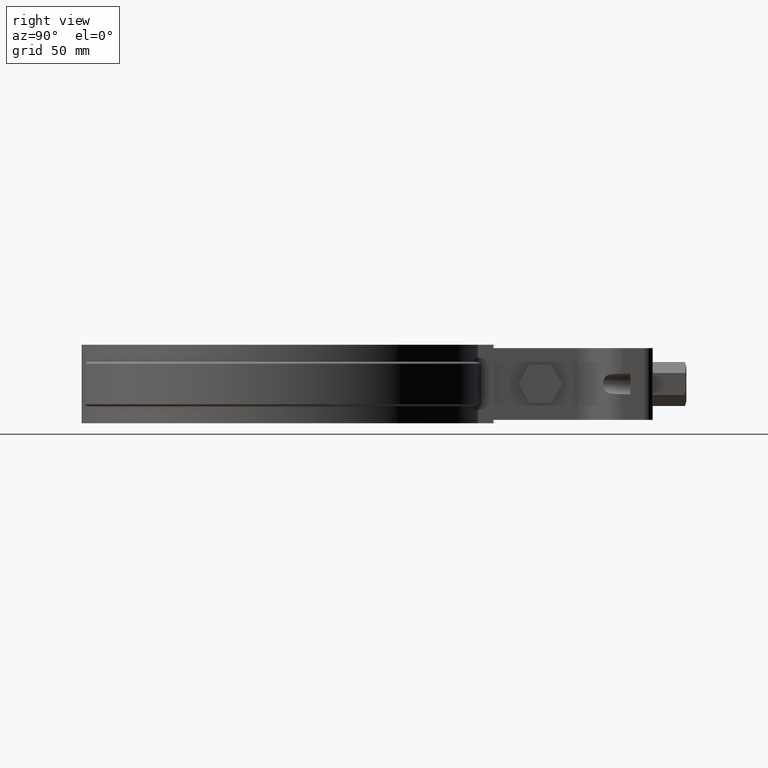
[diagram: clean part render]
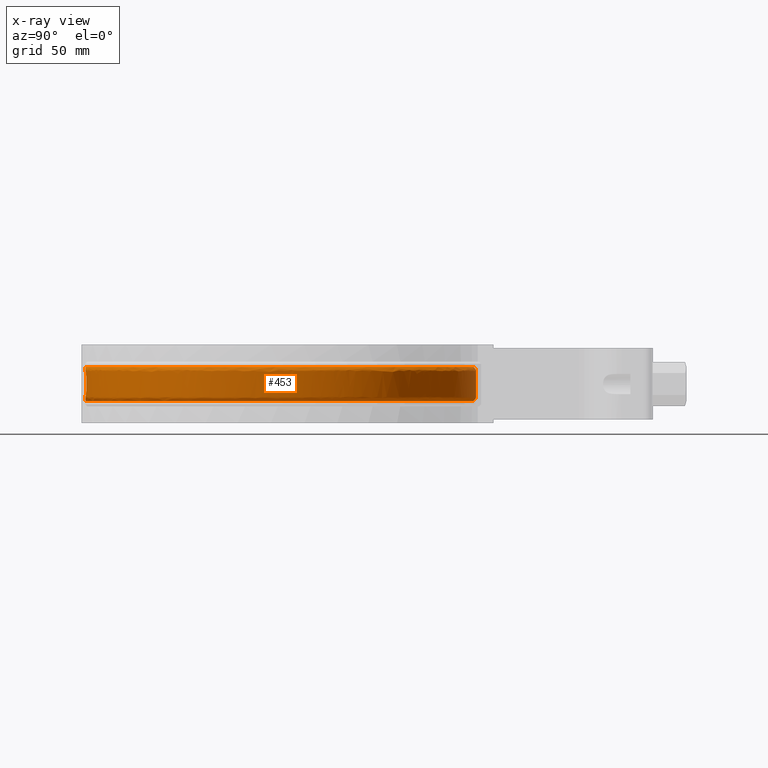
[diagram: x-ray — body ghosted, one internal face saturated and labeled with its STEP entity id]
A machine part, right view, then the same camera in x-ray: the body is ghosted and one INTERNAL B-rep face — a face not visible from any outside direction — is saturated and labeled: STEP entity #453.
In plain terms, the highlighted face is a freeform B-spline surface patch.
Its self-contained STEP definition (entity closure, byte-faithful):
#453 = ADVANCED_FACE( '', ( #798, #799 ), #800, .T. );
#798 = FACE_OUTER_BOUND( '', #1552, .T. );
#799 = FACE_BOUND( '', #1553, .T. );
#800 = B_SPLINE_SURFACE_WITH_KNOTS( '', 3, 3, ( ( #1554, #1555, #1556, #1557, #1558, #1559, #1560, #1561, #1562, #1563, #1564, #1565, #1566, #1567, #1568, #1569, #1570 ), ( #1571, #1572, #1573, #1574, #1575, #1576, #1577, #1578, #1579, #1580, #1581, #1582, #1583, #1584, #1585, #1586, #1587 ), ( #1588, #1589, #1590, #1591, #1592, #1593, #1594, #1595, #1596, #1597, #1598, #1599, #1600, #1601, #1602, #1603, #1604 ), ( #1605, #1606, #1607, #1608, #1609, #1610, #1611, #1612, #1613, #1614, #1615, #1616, #1617, #1618, #1619, #1620, #1621 ), ( #1622, #1623, #1624, #1625, #1626, #1627, #1628, #1629, #1630, #1631, #1632, #1633, #1634, #1635, #1636, #1637, #1638 ), ( #1639, #1640, #1641, #1642, #1643, #1644, #1645, #1646, #1647, #1648, #1649, #1650, #1651, #1652, #1653, #1654, #1655 ), ( #1656, #1657, #1658, #1659, #1660, #1661, #1662, #1663, #1664, #1665, #1666, #1667, #1668, #1669, #1670, #1671, #1672 ), ( #1673, #1674, #1675, #1676, #1677, #1678, #1679, #1680, #1681, #1682, #1683, #1684, #1685, #1686, #1687, #1688, #1689 ), ( #1690, #1691, #1692, #1693, #1694, #1695, #1696, #1697, #1698, #1699, #1700, #1701, #1702, #1703, #1704, #1705, #1706 ), ( #1707, #1708, #1709, #1710, #1711, #1712, #1713, #1714, #1715, #1716, #1717, #1718, #1719, #1720, #1721, #1722, #1723 ), ( #1724, #1725, #1726, #1727, #1728, #1729, #1730, #1731, #1732, #1733, #1734, #1735, #1736, #1737, #1738, #1739, #1740 ), ( #1741, #1742, #1743, #1744, #1745, #1746, #1747, #1748, #1749, #1750, #1751, #1752, #1753, #1754, #1755, #1756, #1757 ), ( #1758, #1759, #1760, #1761, #1762, #1763, #1764, #1765, #1766, #1767, #1768, #1769, #1770, #1771, #1772, #1773, #1774 ), ( #1775, #1776, #1777, #1778, #1779, #1780, #1781, #1782, #1783, #1784, #1785, #1786, #1787, #1788, #1789, #1790, #1791 ), ( #1792, #1793, #1794, #1795, #1796, #1797, #1798, #1799, #1800, #1801, #1802, #1803, #1804, #1805, #1806, #1807, #1808 ), ( #1809, #1810, #1811, #1812, #1813, #1814, #1815, #1816, #1817, #1818, #1819, #1820, #1821, #1822, #1823, #1824, #1825 ), ( #1826, #1827, #1828, #1829, #1830, #1831, #1832, #1833, #1834, #1835, #1836, #1837, #1838, #1839, #1840, #1841, #1842 ), ( #1843, #1844, #1845, #1846, #1847, #1848, #1849, #1850, #1851, #1852, #1853, #1854, #1855, #1856, #1857, #1858, #1859 ), ( #1860, #1861, #1862, #1863, #1864, #1865, #1866, #1867, #1868, #1869, #1870, #1871, #1872, #1873, #1874, #1875, #1876 ), ( #1877, #1878, #1879, #1880, #1881, #1882, #1883, #1884, #1885, #1886, #1887, #1888, #1889, #1890, #1891, #1892, #1893 ), ( #1894, #1895, #1896, #1897, #1898, #1899, #1900, #1901, #1902, #1903, #1904, #1905, #1906, #1907, #1908, #1909, #1910 ), ( #1911, #1912, #1913, #1914, #1915, #1916, #1917, #1918, #1919, #1920, #1921, #1922, #1923, #1924, #1925, #1926, #1927 ) ), .UNSPECIFIED., .F., .F., .F., ( 4, 3, 1, 1, 1, 3, 3, 1, 1, 1, 3, 4 ), ( 4, 1, 1, 1, 1, 1, 1, 1, 1, 1, 1, 1, 1, 1, 4 ), ( 0.000000000000000, 0.0909090909090909, 0.181818181818182, 0.272727272727273, 0.363636363636364, 0.454545454545455, 0.545454545454545, 0.636363636363636, 0.727272727272727, 0.818181818181818, 0.909090909090909, 1.00000000000000 ), ( 2.94817470159169, 4.00000000000000, 5.00000000000000, 6.00000000000000, 7.00000000000000, 8.00000000000000, 9.00000000000000, 10.0000000000000, 11.0000000000000, 12.0000000000000, 13.0000000000000, 14.0000000000000, 15.0000000000000, 16.0000000000000, 17.0000000000000 ), .UNSPECIFIED. );
#1552 = EDGE_LOOP( '', ( #4662, #4663, #4664, #4665, #4666, #4667, #4668, #4669, #4670, #4671, #4672, #4673 ) );
#1553 = EDGE_LOOP( '', ( #4674, #4675, #4676, #4677, #4678, #4679, #4680, #4681, #4682, #4683 ) );
#1554 = CARTESIAN_POINT( '', ( -4.57373842755548, 84.4836495014351, -25.5000000000000 ) );
#1555 = CARTESIAN_POINT( '', ( -17.6140169030165, 83.7785484212474, -25.5000000000000 ) );
#1556 = CARTESIAN_POINT( '', ( -42.7501224215282, 76.3907897944503, -25.5000000000000 ) );
#1557 = CARTESIAN_POINT( '', ( -71.4956709775378, 50.2505123432270, -25.5000000000000 ) );
#1558 = CARTESIAN_POINT( '', ( -86.1002312614292, 14.9572072467204, -25.5000000000000 ) );
#1559 = CARTESIAN_POINT( '', ( -84.2552280888624, -23.1941572600242, -25.5000000000000 ) );
#1560 = CARTESIAN_POINT( '', ( -66.3149285777702, -56.9144403506470, -25.5000000000000 ) );
#1561 = CARTESIAN_POINT( '', ( -35.7060700331207, -79.7621372297763, -25.5000000000000 ) );
#1562 = CARTESIAN_POINT( '', ( 1.72386383356951, -87.3724799998223, -25.5000000000000 ) );
#1563 = CARTESIAN_POINT( '', ( 38.8244802352373, -78.2916402695729, -25.5000000000000 ) );
#1564 = CARTESIAN_POINT( '', ( 68.5082946679775, -54.2543907568589, -25.5000000000000 ) );
#1565 = CARTESIAN_POINT( '', ( 85.1045474199365, -19.8526038891576, -25.5000000000000 ) );
#1566 = CARTESIAN_POINT( '', ( 85.4432300146408, 18.3414873582820, -25.5000000000000 ) );
#1567 = CARTESIAN_POINT( '', ( 69.4579498746001, 53.0325875294891, -25.5000000000000 ) );
#1568 = CARTESIAN_POINT( '', ( 40.2087681660690, 77.5893697278056, -25.5000000000000 ) );
#1569 = CARTESIAN_POINT( '', ( 15.5760698412748, 84.0871317769174, -25.5000000000000 ) );
#1570 = CARTESIAN_POINT( '', ( 3.16749899997406, 84.5477663442119, -25.5000000000000 ) );
#1571 = CARTESIAN_POINT( '', ( -4.55503173385747, 85.2881737615936, -24.6952621458756 ) );
#1572 = CARTESIAN_POINT( '', ( -17.7220381476268, 84.5859650730103, -24.6952621458756 ) );
#1573 = CARTESIAN_POINT( '', ( -43.0987477430875, 77.1464507352005, -24.6952621458756 ) );
#1574 = CARTESIAN_POINT( '', ( -72.1372249274321, 50.7793048320895, -24.6952621458757 ) );
#1575 = CARTESIAN_POINT( '', ( -86.9057531623599, 15.1619661527957, -24.6952621458756 ) );
#1576 = CARTESIAN_POINT( '', ( -85.0712176376558, -23.3525480085753, -24.6952621458756 ) );
#1577 = CARTESIAN_POINT( '', ( -66.9854009723251, -57.4057226091606, -24.6952621458756 ) );
#1578 = CARTESIAN_POINT( '', ( -36.1029690476388, -80.4924590207758, -24.6952621458757 ) );
#1579 = CARTESIAN_POINT( '', ( 1.67636654314826, -88.2023244071327, -24.6952621458756 ) );
#1580 = CARTESIAN_POINT( '', ( 39.1354582900263, -79.0624783820023, -24.6952621458756 ) );
#1581 = CARTESIAN_POINT( '', ( 69.1183336662525, -54.8189648529472, -24.6952621458757 ) );
#1582 = CARTESIAN_POINT( '', ( 85.8971358356805, -20.1030638184777, -24.6952621458757 ) );
#1583 = CARTESIAN_POINT( '', ( 86.2668541452362, 18.4529998418757, -24.6952621458757 ) );
#1584 = CARTESIAN_POINT( '', ( 70.1556487642159, 53.4847260329716, -24.6952621458756 ) );
#1585 = CARTESIAN_POINT( '', ( 40.6458392590685, 78.2959229100007, -24.6952621458756 ) );
#1586 = CARTESIAN_POINT( '', ( 15.7872527803084, 84.8729054578480, -24.6952621458757 ) );
#1587 = CARTESIAN_POINT( '', ( 3.25931876250112, 85.3472487674522, -24.6952621458757 ) );
#1588 = CARTESIAN_POINT( '', ( -4.53632504015947, 86.0926980217522, -23.8905242917513 ) );
#1589 = CARTESIAN_POINT( '', ( -17.8300593922371, 85.3933817247733, -23.8905242917513 ) );
#1590 = CARTESIAN_POINT( '', ( -43.4473730646468, 77.9021116759507, -23.8905242917513 ) );
#1591 = CARTESIAN_POINT( '', ( -72.7787788773263, 51.3080973209521, -23.8905242917513 ) );
#1592 = CARTESIAN_POINT( '', ( -87.7112750632906, 15.3667250588710, -23.8905242917513 ) );
#1593 = CARTESIAN_POINT( '', ( -85.8872071864492, -23.5109387571263, -23.8905242917513 ) );
#1594 = CARTESIAN_POINT( '', ( -67.6558733668801, -57.8970048676741, -23.8905242917513 ) );
#1595 = CARTESIAN_POINT( '', ( -36.4998680621569, -81.2227808117754, -23.8905242917513 ) );
#1596 = CARTESIAN_POINT( '', ( 1.62886925272701, -89.0321688144431, -23.8905242917513 ) );
#1597 = CARTESIAN_POINT( '', ( 39.4464363448153, -79.8333164944318, -23.8905242917513 ) );
#1598 = CARTESIAN_POINT( '', ( 69.7283726645276, -55.3835389490356, -23.8905242917513 ) );
#1599 = CARTESIAN_POINT( '', ( 86.6897242514245, -20.3535237477978, -23.8905242917513 ) );
#1600 = CARTESIAN_POINT( '', ( 87.0904782758316, 18.5645123254694, -23.8905242917513 ) );
#1601 = CARTESIAN_POINT( '', ( 70.8533476538316, 53.9368645364541, -23.8905242917513 ) );
#1602 = CARTESIAN_POINT( '', ( 41.0829103520679, 79.0024760921958, -23.8905242917513 ) );
#1603 = CARTESIAN_POINT( '', ( 15.9984357193421, 85.6586791387786, -23.8905242917513 ) );
#1604 = CARTESIAN_POINT( '', ( 3.35113852502818, 86.1467311906925, -23.8905242917513 ) );
#1605 = CARTESIAN_POINT( '', ( -4.51761834646146, 86.8972222819108, -23.0857864376269 ) );
#1606 = CARTESIAN_POINT( '', ( -17.9380806368474, 86.2007983765363, -23.0857864376269 ) );
#1607 = CARTESIAN_POINT( '', ( -43.7959983862061, 78.6577726167009, -23.0857864376269 ) );
#1608 = CARTESIAN_POINT( '', ( -73.4203328272206, 51.8368898098147, -23.0857864376269 ) );
#1609 = CARTESIAN_POINT( '', ( -88.5167969642214, 15.5714839649463, -23.0857864376269 ) );
#1610 = CARTESIAN_POINT( '', ( -86.7031967352426, -23.6693295056774, -23.0857864376269 ) );
#1611 = CARTESIAN_POINT( '', ( -68.3263457614351, -58.3882871261876, -23.0857864376269 ) );
#1612 = CARTESIAN_POINT( '', ( -36.8967670766750, -81.9531026027749, -23.0857864376269 ) );
#1613 = CARTESIAN_POINT( '', ( 1.58137196230576, -89.8620132217535, -23.0857864376269 ) );
#1614 = CARTESIAN_POINT( '', ( 39.7574143996044, -80.6041546068613, -23.0857864376269 ) );
#1615 = CARTESIAN_POINT( '', ( 70.3384116628027, -55.9481130451239, -23.0857864376269 ) );
#1616 = CARTESIAN_POINT( '', ( 87.4823126671685, -20.6039836771179, -23.0857864376269 ) );
#1617 = CARTESIAN_POINT( '', ( 87.9141024064269, 18.6760248090632, -23.0857864376269 ) );
#1618 = CARTESIAN_POINT( '', ( 71.5510465434473, 54.3890030399366, -23.0857864376269 ) );
#1619 = CARTESIAN_POINT( '', ( 41.5199814450674, 79.7090292743909, -23.0857864376269 ) );
#1620 = CARTESIAN_POINT( '', ( 16.2096186583757, 86.4444528197092, -23.0857864376269 ) );
#1621 = CARTESIAN_POINT( '', ( 3.44295828755524, 86.9462136139328, -23.0857864376269 ) );
#1622 = CARTESIAN_POINT( '', ( -4.51546674101459, 86.9897570081558, -22.9932271442431 ) );
#1623 = CARTESIAN_POINT( '', ( -17.9505050183032, 86.2936657797167, -22.9932271442431 ) );
#1624 = CARTESIAN_POINT( '', ( -43.8360965538937, 78.7446871844140, -22.9932271442431 ) );
#1625 = CARTESIAN_POINT( '', ( -73.4941230434574, 51.8977104346491, -22.9932271442431 ) );
#1626 = CARTESIAN_POINT( '', ( -88.6094464370568, 15.5950349133244, -22.9932271442431 ) );
#1627 = CARTESIAN_POINT( '', ( -86.7970501754129, -23.6875472839132, -22.9932271442431 ) );
#1628 = CARTESIAN_POINT( '', ( -68.4034621177184, -58.4447934014510, -22.9932271442431 ) );
#1629 = CARTESIAN_POINT( '', ( -36.9424175852726, -82.0371027135828, -22.9932271442431 ) );
#1630 = CARTESIAN_POINT( '', ( 1.57590892161928, -89.9574602192639, -22.9932271442431 ) );
#1631 = CARTESIAN_POINT( '', ( 39.7931824560735, -80.6928148216556, -22.9932271442431 ) );
#1632 = CARTESIAN_POINT( '', ( 70.4085770941012, -56.0130491968520, -22.9932271442431 ) );
#1633 = CARTESIAN_POINT( '', ( 87.5734745571299, -20.6327910632251, -22.9932271442431 ) );
#1634 = CARTESIAN_POINT( '', ( 88.0088339604989, 18.6888507456486, -22.9932271442431 ) );
#1635 = CARTESIAN_POINT( '', ( 71.6312944352130, 54.4410070809787, -22.9932271442431 ) );
#1636 = CARTESIAN_POINT( '', ( 41.5702524635353, 79.7902955686840, -22.9932271442431 ) );
#1637 = CARTESIAN_POINT( '', ( 16.2339084858164, 86.5348308928840, -22.9932271442431 ) );
#1638 = CARTESIAN_POINT( '', ( 3.45351920785322, 87.0381684384618, -22.9932271442431 ) );
#1639 = CARTESIAN_POINT( '', ( -4.51158735940072, 87.1565987105515, -22.7898759680773 ) );
#1640 = CARTESIAN_POINT( '', ( -17.9729063916840, 86.4611073043467, -22.7898759680773 ) );
#1641 = CARTESIAN_POINT( '', ( -43.9083942396537, 78.9013956443477, -22.7898759680773 ) );
#1642 = CARTESIAN_POINT( '', ( -73.6271680720287, 52.0073710669320, -22.7898759680773 ) );
#1643 = CARTESIAN_POINT( '', ( -88.7764950295279, 15.6374976781682, -22.7898759680773 ) );
#1644 = CARTESIAN_POINT( '', ( -86.9662695416891, -23.7203942512959, -22.7898759680773 ) );
#1645 = CARTESIAN_POINT( '', ( -68.5425042339808, -58.5466751872794, -22.7898759680773 ) );
#1646 = CARTESIAN_POINT( '', ( -37.0247262371563, -82.1885563576072, -22.7898759680773 ) );
#1647 = CARTESIAN_POINT( '', ( 1.56605896533393, -90.1295527968227, -22.7898759680773 ) );
#1648 = CARTESIAN_POINT( '', ( 39.8576728768576, -80.8526707132901, -22.7898759680773 ) );
#1649 = CARTESIAN_POINT( '', ( 70.5350865731068, -56.1301301948835, -22.7898759680773 ) );
#1650 = CARTESIAN_POINT( '', ( 87.7378410121027, -20.6847312756700, -22.7898759680773 ) );
#1651 = CARTESIAN_POINT( '', ( 88.1796365812373, 18.7119761298322, -22.7898759680773 ) );
#1652 = CARTESIAN_POINT( '', ( 71.7759827637913, 54.5347712610977, -22.7898759680773 ) );
#1653 = CARTESIAN_POINT( '', ( 41.6608919741570, 79.9368200945290, -22.7898759680773 ) );
#1654 = CARTESIAN_POINT( '', ( 16.2777034623139, 86.6977841127140, -22.7898759680773 ) );
#1655 = CARTESIAN_POINT( '', ( 3.47256072872739, 87.2039645680933, -22.7898759680773 ) );
#1656 = CARTESIAN_POINT( '', ( -4.50726339850927, 87.3425605642765, -22.4418734431229 ) );
#1657 = CARTESIAN_POINT( '', ( -17.9978749748383, 86.6477377202657, -22.4418734431229 ) );
#1658 = CARTESIAN_POINT( '', ( -43.9889772801699, 79.0760629804225, -22.4418734431229 ) );
#1659 = CARTESIAN_POINT( '', ( -73.7754601344252, 52.1295988682979, -22.4418734431229 ) );
#1660 = CARTESIAN_POINT( '', ( -88.9626874830452, 15.6848266993378, -22.4418734431229 ) );
#1661 = CARTESIAN_POINT( '', ( -87.1548815408897, -23.7570054992993, -22.4418734431229 ) );
#1662 = CARTESIAN_POINT( '', ( -68.6974806536332, -58.6602326820868, -22.4418734431229 ) );
#1663 = CARTESIAN_POINT( '', ( -37.1164675060484, -82.3573666729645, -22.4418734431230 ) );
#1664 = CARTESIAN_POINT( '', ( 1.55508019861294, -90.3213672789073, -22.4418734431229 ) );
#1665 = CARTESIAN_POINT( '', ( 39.9295539355158, -81.0308461784787, -22.4418734431229 ) );
#1666 = CARTESIAN_POINT( '', ( 70.6760941083443, -56.2606287400150, -22.4418734431229 ) );
#1667 = CARTESIAN_POINT( '', ( 87.9210439536817, -20.7426238651750, -22.4418734431229 ) );
#1668 = CARTESIAN_POINT( '', ( 88.3700132767368, 18.7377516958275, -22.4418734431229 ) );
#1669 = CARTESIAN_POINT( '', ( 71.9372524548125, 54.6392808680939, -22.4418734431229 ) );
#1670 = CARTESIAN_POINT( '', ( 41.7619188228039, 80.1001364120387, -22.4418734431229 ) );
#1671 = CARTESIAN_POINT( '', ( 16.3265173673291, 86.8794118616217, -22.4418734431230 ) );
#1672 = CARTESIAN_POINT( '', ( 3.49378441842042, 87.3887610258371, -22.4418734431230 ) );
#1673 = CARTESIAN_POINT( '', ( -4.50460071653933, 87.4570753083829, -22.0642686993349 ) );
#1674 = CARTESIAN_POINT( '', ( -18.0132505524277, 86.7626641629383, -22.0642686993349 ) );
#1675 = CARTESIAN_POINT( '', ( -44.0386000715068, 79.1836225949009, -22.0642686993349 ) );
#1676 = CARTESIAN_POINT( '', ( -73.8667779355666, 52.2048663767452, -22.0642686993349 ) );
#1677 = CARTESIAN_POINT( '', ( -89.0773442298025, 15.7139717666700, -22.0642686993349 ) );
#1678 = CARTESIAN_POINT( '', ( -87.2710282365221, -23.7795505945032, -22.0642686993349 ) );
#1679 = CARTESIAN_POINT( '', ( -68.7929146616490, -58.7301610421174, -22.0642686993349 ) );
#1680 = CARTESIAN_POINT( '', ( -37.1729615004926, -82.4613195518934, -22.0642686993349 ) );
#1681 = CARTESIAN_POINT( '', ( 1.54831950744713, -90.4394860537625, -22.0642686993349 ) );
#1682 = CARTESIAN_POINT( '', ( 39.9738180728830, -81.1405660881989, -22.0642686993349 ) );
#1683 = CARTESIAN_POINT( '', ( 70.7629261198098, -56.3409893473259, -22.0642686993349 ) );
#1684 = CARTESIAN_POINT( '', ( 88.0338597680771, -20.7782739457697, -22.0642686993349 ) );
#1685 = CARTESIAN_POINT( '', ( 88.4872466669846, 18.7536242109968, -22.0642686993349 ) );
#1686 = CARTESIAN_POINT( '', ( 72.0365618402025, 54.7036375663204, -22.0642686993349 ) );
#1687 = CARTESIAN_POINT( '', ( 41.8241308490282, 80.2007061037975, -22.0642686993349 ) );
#1688 = CARTESIAN_POINT( '', ( 16.3565768216186, 86.9912576771594, -22.0642686993349 ) );
#1689 = CARTESIAN_POINT( '', ( 3.50685390200271, 87.5025581226417, -22.0642686993349 ) );
#1690 = CARTESIAN_POINT( '', ( -4.50400133142361, 87.4828532397778, -21.8024714832808 ) );
#1691 = CARTESIAN_POINT( '', ( -18.0167116838946, 86.7885347700622, -21.8024714832808 ) );
#1692 = CARTESIAN_POINT( '', ( -44.0497704489171, 79.2078348863794, -21.8024714832808 ) );
#1693 = CARTESIAN_POINT( '', ( -73.8873341008999, 52.2218095283381, -21.8024714832809 ) );
#1694 = CARTESIAN_POINT( '', ( -89.1031541268157, 15.7205324899380, -21.8024714832808 ) );
#1695 = CARTESIAN_POINT( '', ( -87.2971735296468, -23.7846256258627, -21.8024714832808 ) );
#1696 = CARTESIAN_POINT( '', ( -68.8143974089630, -58.7459023205134, -21.8024714832808 ) );
#1697 = CARTESIAN_POINT( '', ( -37.1856786254739, -82.4847199463338, -21.8024714832809 ) );
#1698 = CARTESIAN_POINT( '', ( 1.54679763675342, -90.4660752733292, -21.8024714832808 ) );
#1699 = CARTESIAN_POINT( '', ( 39.9837821862834, -81.1652646746341, -21.8024714832808 ) );
#1700 = CARTESIAN_POINT( '', ( 70.7824725079357, -56.3590789849378, -21.8024714832809 ) );
#1701 = CARTESIAN_POINT( '', ( 88.0592552605653, -20.7862989851562, -21.8024714832809 ) );
#1702 = CARTESIAN_POINT( '', ( 88.5136365813540, 18.7571972059878, -21.8024714832809 ) );
#1703 = CARTESIAN_POINT( '', ( 72.0589169573835, 54.7181246314109, -21.8024714832809 ) );
#1704 = CARTESIAN_POINT( '', ( 41.8381351360435, 80.2233449232334, -21.8024714832808 ) );
#1705 = CARTESIAN_POINT( '', ( 16.3633433786807, 87.0164348172930, -21.8024714832809 ) );
#1706 = CARTESIAN_POINT( '', ( 3.50979591836732, 87.5281745074772, -21.8024714832809 ) );
#1707 = CARTESIAN_POINT( '', ( -4.50400133142361, 87.4828532397778, -21.6715728752538 ) );
#1708 = CARTESIAN_POINT( '', ( -18.0167116838946, 86.7885347700622, -21.6715728752538 ) );
#1709 = CARTESIAN_POINT( '', ( -44.0497704489171, 79.2078348863794, -21.6715728752538 ) );
#1710 = CARTESIAN_POINT( '', ( -73.8873341008999, 52.2218095283381, -21.6715728752538 ) );
#1711 = CARTESIAN_POINT( '', ( -89.1031541268157, 15.7205324899380, -21.6715728752538 ) );
#1712 = CARTESIAN_POINT( '', ( -87.2971735296468, -23.7846256258627, -21.6715728752538 ) );
#1713 = CARTESIAN_POINT( '', ( -68.8143974089630, -58.7459023205134, -21.6715728752538 ) );
#1714 = CARTESIAN_POINT( '', ( -37.1856786254739, -82.4847199463338, -21.6715728752538 ) );
#1715 = CARTESIAN_POINT( '', ( 1.54679763675342, -90.4660752733292, -21.6715728752538 ) );
#1716 = CARTESIAN_POINT( '', ( 39.9837821862834, -81.1652646746341, -21.6715728752538 ) );
#1717 = CARTESIAN_POINT( '', ( 70.7824725079357, -56.3590789849378, -21.6715728752538 ) );
#1718 = CARTESIAN_POINT( '', ( 88.0592552605653, -20.7862989851562, -21.6715728752538 ) );
#1719 = CARTESIAN_POINT( '', ( 88.5136365813540, 18.7571972059878, -21.6715728752538 ) );
#1720 = CARTESIAN_POINT( '', ( 72.0589169573835, 54.7181246314109, -21.6715728752538 ) );
#1721 = CARTESIAN_POINT( '', ( 41.8381351360435, 80.2233449232334, -21.6715728752538 ) );
#1722 = CARTESIAN_POINT( '', ( 16.3633433786807, 87.0164348172930, -21.6715728752538 ) );
#1723 = CARTESIAN_POINT( '', ( 3.50979591836732, 87.5281745074772, -21.6715728752538 ) );
#1724 = CARTESIAN_POINT( '', ( -4.50400133142361, 87.4828532397778, -17.8905242917513 ) );
#1725 = CARTESIAN_POINT( '', ( -18.0167116838946, 86.7885347700622, -17.8905242917513 ) );
#1726 = CARTESIAN_POINT( '', ( -44.0497704489171, 79.2078348863794, -17.8905242917513 ) );
#1727 = CARTESIAN_POINT( '', ( -73.8873341008999, 52.2218095283380, -17.8905242917513 ) );
#1728 = CARTESIAN_POINT( '', ( -89.1031541268157, 15.7205324899380, -17.8905242917513 ) );
#1729 = CARTESIAN_POINT( '', ( -87.2971735296468, -23.7846256258627, -17.8905242917513 ) );
#1730 = CARTESIAN_POINT( '', ( -68.8143974089630, -58.7459023205134, -17.8905242917513 ) );
#1731 = CARTESIAN_POINT( '', ( -37.1856786254739, -82.4847199463338, -17.8905242917513 ) );
#1732 = CARTESIAN_POINT( '', ( 1.54679763675341, -90.4660752733292, -17.8905242917513 ) );
#1733 = CARTESIAN_POINT( '', ( 39.9837821862834, -81.1652646746341, -17.8905242917513 ) );
#1734 = CARTESIAN_POINT( '', ( 70.7824725079357, -56.3590789849378, -17.8905242917513 ) );
#1735 = CARTESIAN_POINT( '', ( 88.0592552605653, -20.7862989851562, -17.8905242917513 ) );
#1736 = CARTESIAN_POINT( '', ( 88.5136365813540, 18.7571972059878, -17.8905242917513 ) );
#1737 = CARTESIAN_POINT( '', ( 72.0589169573834, 54.7181246314109, -17.8905242917513 ) );
#1738 = CARTESIAN_POINT( '', ( 41.8381351360435, 80.2233449232333, -17.8905242917513 ) );
#1739 = CARTESIAN_POINT( '', ( 16.3633433786807, 87.0164348172930, -17.8905242917513 ) );
#1740 = CARTESIAN_POINT( '', ( 3.50979591836732, 87.5281745074772, -17.8905242917513 ) );
#1741 = CARTESIAN_POINT( '', ( -4.50400133142361, 87.4828532397778, -14.1094757082487 ) );
#1742 = CARTESIAN_POINT( '', ( -18.0167116838946, 86.7885347700622, -14.1094757082487 ) );
#1743 = CARTESIAN_POINT( '', ( -44.0497704489171, 79.2078348863794, -14.1094757082487 ) );
#1744 = CARTESIAN_POINT( '', ( -73.8873341008999, 52.2218095283380, -14.1094757082487 ) );
#1745 = CARTESIAN_POINT( '', ( -89.1031541268157, 15.7205324899380, -14.1094757082487 ) );
#1746 = CARTESIAN_POINT( '', ( -87.2971735296468, -23.7846256258627, -14.1094757082487 ) );
#1747 = CARTESIAN_POINT( '', ( -68.8143974089630, -58.7459023205134, -14.1094757082487 ) );
#1748 = CARTESIAN_POINT( '', ( -37.1856786254739, -82.4847199463338, -14.1094757082488 ) );
#1749 = CARTESIAN_POINT( '', ( 1.54679763675341, -90.4660752733292, -14.1094757082487 ) );
#1750 = CARTESIAN_POINT( '', ( 39.9837821862834, -81.1652646746341, -14.1094757082487 ) );
#1751 = CARTESIAN_POINT( '', ( 70.7824725079357, -56.3590789849378, -14.1094757082487 ) );
#1752 = CARTESIAN_POINT( '', ( 88.0592552605653, -20.7862989851562, -14.1094757082487 ) );
#1753 = CARTESIAN_POINT( '', ( 88.5136365813540, 18.7571972059878, -14.1094757082487 ) );
#1754 = CARTESIAN_POINT( '', ( 72.0589169573834, 54.7181246314109, -14.1094757082487 ) );
#1755 = CARTESIAN_POINT( '', ( 41.8381351360435, 80.2233449232333, -14.1094757082487 ) );
#1756 = CARTESIAN_POINT( '', ( 16.3633433786807, 87.0164348172930, -14.1094757082487 ) );
#1757 = CARTESIAN_POINT( '', ( 3.50979591836732, 87.5281745074772, -14.1094757082487 ) );
#1758 = CARTESIAN_POINT( '', ( -4.50400133142361, 87.4828532397778, -10.3284271247462 ) );
#1759 = CARTESIAN_POINT( '', ( -18.0167116838946, 86.7885347700622, -10.3284271247462 ) );
#1760 = CARTESIAN_POINT( '', ( -44.0497704489171, 79.2078348863794, -10.3284271247462 ) );
#1761 = CARTESIAN_POINT( '', ( -73.8873341008999, 52.2218095283380, -10.3284271247462 ) );
#1762 = CARTESIAN_POINT( '', ( -89.1031541268157, 15.7205324899380, -10.3284271247462 ) );
#1763 = CARTESIAN_POINT( '', ( -87.2971735296468, -23.7846256258627, -10.3284271247462 ) );
#1764 = CARTESIAN_POINT( '', ( -68.8143974089630, -58.7459023205134, -10.3284271247462 ) );
#1765 = CARTESIAN_POINT( '', ( -37.1856786254739, -82.4847199463338, -10.3284271247462 ) );
#1766 = CARTESIAN_POINT( '', ( 1.54679763675341, -90.4660752733292, -10.3284271247462 ) );
#1767 = CARTESIAN_POINT( '', ( 39.9837821862834, -81.1652646746341, -10.3284271247462 ) );
#1768 = CARTESIAN_POINT( '', ( 70.7824725079357, -56.3590789849378, -10.3284271247462 ) );
#1769 = CARTESIAN_POINT( '', ( 88.0592552605653, -20.7862989851562, -10.3284271247462 ) );
#1770 = CARTESIAN_POINT( '', ( 88.5136365813540, 18.7571972059878, -10.3284271247462 ) );
#1771 = CARTESIAN_POINT( '', ( 72.0589169573834, 54.7181246314109, -10.3284271247462 ) );
#1772 = CARTESIAN_POINT( '', ( 41.8381351360435, 80.2233449232333, -10.3284271247462 ) );
#1773 = CARTESIAN_POINT( '', ( 16.3633433786807, 87.0164348172930, -10.3284271247462 ) );
#1774 = CARTESIAN_POINT( '', ( 3.50979591836732, 87.5281745074772, -10.3284271247462 ) );
#1775 = CARTESIAN_POINT( '', ( -4.50400133142361, 87.4828532397778, -10.1975285167192 ) );
#1776 = CARTESIAN_POINT( '', ( -18.0167116838946, 86.7885347700622, -10.1975285167192 ) );
#1777 = CARTESIAN_POINT( '', ( -44.0497704489171, 79.2078348863794, -10.1975285167192 ) );
#1778 = CARTESIAN_POINT( '', ( -73.8873341008999, 52.2218095283380, -10.1975285167192 ) );
#1779 = CARTESIAN_POINT( '', ( -89.1031541268157, 15.7205324899380, -10.1975285167192 ) );
#1780 = CARTESIAN_POINT( '', ( -87.2971735296468, -23.7846256258627, -10.1975285167192 ) );
#1781 = CARTESIAN_POINT( '', ( -68.8143974089630, -58.7459023205134, -10.1975285167192 ) );
#1782 = CARTESIAN_POINT( '', ( -37.1856786254739, -82.4847199463338, -10.1975285167192 ) );
#1783 = CARTESIAN_POINT( '', ( 1.54679763675341, -90.4660752733292, -10.1975285167192 ) );
#1784 = CARTESIAN_POINT( '', ( 39.9837821862834, -81.1652646746341, -10.1975285167192 ) );
#1785 = CARTESIAN_POINT( '', ( 70.7824725079357, -56.3590789849378, -10.1975285167192 ) );
#1786 = CARTESIAN_POINT( '', ( 88.0592552605653, -20.7862989851562, -10.1975285167192 ) );
#1787 = CARTESIAN_POINT( '', ( 88.5136365813540, 18.7571972059878, -10.1975285167192 ) );
#1788 = CARTESIAN_POINT( '', ( 72.0589169573834, 54.7181246314109, -10.1975285167192 ) );
#1789 = CARTESIAN_POINT( '', ( 41.8381351360435, 80.2233449232333, -10.1975285167192 ) );
#1790 = CARTESIAN_POINT( '', ( 16.3633433786807, 87.0164348172930, -10.1975285167192 ) );
#1791 = CARTESIAN_POINT( '', ( 3.50979591836732, 87.5281745074772, -10.1975285167192 ) );
#1792 = CARTESIAN_POINT( '', ( -4.50460071653933, 87.4570753083829, -9.93573130066509 ) );
#1793 = CARTESIAN_POINT( '', ( -18.0132505524277, 86.7626641629383, -9.93573130066509 ) );
#1794 = CARTESIAN_POINT( '', ( -44.0386000715068, 79.1836225949009, -9.93573130066509 ) );
#1795 = CARTESIAN_POINT( '', ( -73.8667779355666, 52.2048663767452, -9.93573130066510 ) );
#1796 = CARTESIAN_POINT( '', ( -89.0773442298026, 15.7139717666700, -9.93573130066509 ) );
#1797 = CARTESIAN_POINT( '', ( -87.2710282365221, -23.7795505945032, -9.93573130066509 ) );
#1798 = CARTESIAN_POINT( '', ( -68.7929146616490, -58.7301610421174, -9.93573130066509 ) );
#1799 = CARTESIAN_POINT( '', ( -37.1729615004926, -82.4613195518935, -9.93573130066510 ) );
#1800 = CARTESIAN_POINT( '', ( 1.54831950744713, -90.4394860537625, -9.93573130066509 ) );
#1801 = CARTESIAN_POINT( '', ( 39.9738180728829, -81.1405660881989, -9.93573130066509 ) );
#1802 = CARTESIAN_POINT( '', ( 70.7629261198098, -56.3409893473259, -9.93573130066510 ) );
#1803 = CARTESIAN_POINT( '', ( 88.0338597680771, -20.7782739457697, -9.93573130066510 ) );
#1804 = CARTESIAN_POINT( '', ( 88.4872466669846, 18.7536242109968, -9.93573130066510 ) );
#1805 = CARTESIAN_POINT( '', ( 72.0365618402025, 54.7036375663204, -9.93573130066509 ) );
#1806 = CARTESIAN_POINT( '', ( 41.8241308490282, 80.2007061037975, -9.93573130066509 ) );
#1807 = CARTESIAN_POINT( '', ( 16.3565768216186, 86.9912576771594, -9.93573130066510 ) );
#1808 = CARTESIAN_POINT( '', ( 3.50685390200271, 87.5025581226417, -9.93573130066510 ) );
#1809 = CARTESIAN_POINT( '', ( -4.50726339850927, 87.3425605642765, -9.55812655687707 ) );
#1810 = CARTESIAN_POINT( '', ( -17.9978749748383, 86.6477377202657, -9.55812655687707 ) );
#1811 = CARTESIAN_POINT( '', ( -43.9889772801699, 79.0760629804225, -9.55812655687707 ) );
#1812 = CARTESIAN_POINT( '', ( -73.7754601344252, 52.1295988682979, -9.55812655687707 ) );
#1813 = CARTESIAN_POINT( '', ( -88.9626874830452, 15.6848266993378, -9.55812655687707 ) );
#1814 = CARTESIAN_POINT( '', ( -87.1548815408897, -23.7570054992993, -9.55812655687707 ) );
#1815 = CARTESIAN_POINT( '', ( -68.6974806536332, -58.6602326820868, -9.55812655687707 ) );
#1816 = CARTESIAN_POINT( '', ( -37.1164675060484, -82.3573666729645, -9.55812655687708 ) );
#1817 = CARTESIAN_POINT( '', ( 1.55508019861295, -90.3213672789073, -9.55812655687707 ) );
#1818 = CARTESIAN_POINT( '', ( 39.9295539355158, -81.0308461784787, -9.55812655687707 ) );
#1819 = CARTESIAN_POINT( '', ( 70.6760941083443, -56.2606287400150, -9.55812655687708 ) );
#1820 = CARTESIAN_POINT( '', ( 87.9210439536817, -20.7426238651750, -9.55812655687707 ) );
#1821 = CARTESIAN_POINT( '', ( 88.3700132767368, 18.7377516958275, -9.55812655687708 ) );
#1822 = CARTESIAN_POINT( '', ( 71.9372524548125, 54.6392808680939, -9.55812655687707 ) );
#1823 = CARTESIAN_POINT( '', ( 41.7619188228039, 80.1001364120387, -9.55812655687707 ) );
#1824 = CARTESIAN_POINT( '', ( 16.3265173673291, 86.8794118616217, -9.55812655687708 ) );
#1825 = CARTESIAN_POINT( '', ( 3.49378441842042, 87.3887610258371, -9.55812655687708 ) );
#1826 = CARTESIAN_POINT( '', ( -4.51158735940072, 87.1565987105515, -9.21012403192273 ) );
#1827 = CARTESIAN_POINT( '', ( -17.9729063916840, 86.4611073043467, -9.21012403192273 ) );
#1828 = CARTESIAN_POINT( '', ( -43.9083942396537, 78.9013956443477, -9.21012403192273 ) );
#1829 = CARTESIAN_POINT( '', ( -73.6271680720287, 52.0073710669320, -9.21012403192273 ) );
#1830 = CARTESIAN_POINT( '', ( -88.7764950295278, 15.6374976781682, -9.21012403192272 ) );
#1831 = CARTESIAN_POINT( '', ( -86.9662695416891, -23.7203942512959, -9.21012403192272 ) );
#1832 = CARTESIAN_POINT( '', ( -68.5425042339808, -58.5466751872794, -9.21012403192272 ) );
#1833 = CARTESIAN_POINT( '', ( -37.0247262371563, -82.1885563576071, -9.21012403192273 ) );
#1834 = CARTESIAN_POINT( '', ( 1.56605896533393, -90.1295527968227, -9.21012403192272 ) );
#1835 = CARTESIAN_POINT( '', ( 39.8576728768576, -80.8526707132901, -9.21012403192273 ) );
#1836 = CARTESIAN_POINT( '', ( 70.5350865731068, -56.1301301948835, -9.21012403192273 ) );
#1837 = CARTESIAN_POINT( '', ( 87.7378410121027, -20.6847312756700, -9.21012403192273 ) );
#1838 = CARTESIAN_POINT( '', ( 88.1796365812373, 18.7119761298322, -9.21012403192273 ) );
#1839 = CARTESIAN_POINT( '', ( 71.7759827637913, 54.5347712610977, -9.21012403192273 ) );
#1840 = CARTESIAN_POINT( '', ( 41.6608919741569, 79.9368200945290, -9.21012403192272 ) );
#1841 = CARTESIAN_POINT( '', ( 16.2777034623139, 86.6977841127140, -9.21012403192273 ) );
#1842 = CARTESIAN_POINT( '', ( 3.47256072872739, 87.2039645680932, -9.21012403192273 ) );
#1843 = CARTESIAN_POINT( '', ( -4.51546674101459, 86.9897570081558, -9.00677285575690 ) );
#1844 = CARTESIAN_POINT( '', ( -17.9505050183032, 86.2936657797167, -9.00677285575690 ) );
#1845 = CARTESIAN_POINT( '', ( -43.8360965538937, 78.7446871844140, -9.00677285575690 ) );
#1846 = CARTESIAN_POINT( '', ( -73.4941230434574, 51.8977104346491, -9.00677285575690 ) );
#1847 = CARTESIAN_POINT( '', ( -88.6094464370567, 15.5950349133244, -9.00677285575690 ) );
#1848 = CARTESIAN_POINT( '', ( -86.7970501754129, -23.6875472839132, -9.00677285575690 ) );
#1849 = CARTESIAN_POINT( '', ( -68.4034621177184, -58.4447934014510, -9.00677285575690 ) );
#1850 = CARTESIAN_POINT( '', ( -36.9424175852726, -82.0371027135827, -9.00677285575691 ) );
#1851 = CARTESIAN_POINT( '', ( 1.57590892161928, -89.9574602192639, -9.00677285575690 ) );
#1852 = CARTESIAN_POINT( '', ( 39.7931824560734, -80.6928148216556, -9.00677285575690 ) );
#1853 = CARTESIAN_POINT( '', ( 70.4085770941012, -56.0130491968520, -9.00677285575691 ) );
#1854 = CARTESIAN_POINT( '', ( 87.5734745571299, -20.6327910632251, -9.00677285575691 ) );
#1855 = CARTESIAN_POINT( '', ( 88.0088339604989, 18.6888507456486, -9.00677285575691 ) );
#1856 = CARTESIAN_POINT( '', ( 71.6312944352130, 54.4410070809786, -9.00677285575690 ) );
#1857 = CARTESIAN_POINT( '', ( 41.5702524635353, 79.7902955686840, -9.00677285575690 ) );
#1858 = CARTESIAN_POINT( '', ( 16.2339084858164, 86.5348308928840, -9.00677285575691 ) );
#1859 = CARTESIAN_POINT( '', ( 3.45351920785322, 87.0381684384618, -9.00677285575691 ) );
#1860 = CARTESIAN_POINT( '', ( -4.51761834646146, 86.8972222819108, -8.91421356237310 ) );
#1861 = CARTESIAN_POINT( '', ( -17.9380806368474, 86.2007983765363, -8.91421356237310 ) );
#1862 = CARTESIAN_POINT( '', ( -43.7959983862061, 78.6577726167009, -8.91421356237310 ) );
#1863 = CARTESIAN_POINT( '', ( -73.4203328272206, 51.8368898098147, -8.91421356237311 ) );
#1864 = CARTESIAN_POINT( '', ( -88.5167969642214, 15.5714839649463, -8.91421356237310 ) );
#1865 = CARTESIAN_POINT( '', ( -86.7031967352426, -23.6693295056774, -8.91421356237310 ) );
#1866 = CARTESIAN_POINT( '', ( -68.3263457614351, -58.3882871261876, -8.91421356237310 ) );
#1867 = CARTESIAN_POINT( '', ( -36.8967670766750, -81.9531026027749, -8.91421356237311 ) );
#1868 = CARTESIAN_POINT( '', ( 1.58137196230576, -89.8620132217535, -8.91421356237310 ) );
#1869 = CARTESIAN_POINT( '', ( 39.7574143996044, -80.6041546068613, -8.91421356237310 ) );
#1870 = CARTESIAN_POINT( '', ( 70.3384116628027, -55.9481130451239, -8.91421356237311 ) );
#1871 = CARTESIAN_POINT( '', ( 87.4823126671685, -20.6039836771179, -8.91421356237311 ) );
#1872 = CARTESIAN_POINT( '', ( 87.9141024064269, 18.6760248090632, -8.91421356237311 ) );
#1873 = CARTESIAN_POINT( '', ( 71.5510465434473, 54.3890030399366, -8.91421356237310 ) );
#1874 = CARTESIAN_POINT( '', ( 41.5199814450674, 79.7090292743909, -8.91421356237310 ) );
#1875 = CARTESIAN_POINT( '', ( 16.2096186583757, 86.4444528197092, -8.91421356237311 ) );
#1876 = CARTESIAN_POINT( '', ( 3.44295828755524, 86.9462136139328, -8.91421356237311 ) );
#1877 = CARTESIAN_POINT( '', ( -4.53632504015947, 86.0926980217522, -8.10947570824872 ) );
#1878 = CARTESIAN_POINT( '', ( -17.8300593922371, 85.3933817247733, -8.10947570824872 ) );
#1879 = CARTESIAN_POINT( '', ( -43.4473730646468, 77.9021116759507, -8.10947570824872 ) );
#1880 = CARTESIAN_POINT( '', ( -72.7787788773263, 51.3080973209521, -8.10947570824872 ) );
#1881 = CARTESIAN_POINT( '', ( -87.7112750632906, 15.3667250588710, -8.10947570824872 ) );
#1882 = CARTESIAN_POINT( '', ( -85.8872071864492, -23.5109387571263, -8.10947570824872 ) );
#1883 = CARTESIAN_POINT( '', ( -67.6558733668801, -57.8970048676741, -8.10947570824871 ) );
#1884 = CARTESIAN_POINT( '', ( -36.4998680621569, -81.2227808117753, -8.10947570824872 ) );
#1885 = CARTESIAN_POINT( '', ( 1.62886925272701, -89.0321688144431, -8.10947570824872 ) );
#1886 = CARTESIAN_POINT( '', ( 39.4464363448153, -79.8333164944318, -8.10947570824872 ) );
#1887 = CARTESIAN_POINT( '', ( 69.7283726645276, -55.3835389490356, -8.10947570824872 ) );
#1888 = CARTESIAN_POINT( '', ( 86.6897242514245, -20.3535237477978, -8.10947570824872 ) );
#1889 = CARTESIAN_POINT( '', ( 87.0904782758316, 18.5645123254694, -8.10947570824872 ) );
#1890 = CARTESIAN_POINT( '', ( 70.8533476538315, 53.9368645364541, -8.10947570824872 ) );
#1891 = CARTESIAN_POINT( '', ( 41.0829103520679, 79.0024760921958, -8.10947570824872 ) );
#1892 = CARTESIAN_POINT( '', ( 15.9984357193421, 85.6586791387786, -8.10947570824872 ) );
#1893 = CARTESIAN_POINT( '', ( 3.35113852502818, 86.1467311906925, -8.10947570824872 ) );
#1894 = CARTESIAN_POINT( '', ( -4.55503173385747, 85.2881737615936, -7.30473785412435 ) );
#1895 = CARTESIAN_POINT( '', ( -17.7220381476268, 84.5859650730103, -7.30473785412435 ) );
#1896 = CARTESIAN_POINT( '', ( -43.0987477430875, 77.1464507352005, -7.30473785412435 ) );
#1897 = CARTESIAN_POINT( '', ( -72.1372249274321, 50.7793048320895, -7.30473785412435 ) );
#1898 = CARTESIAN_POINT( '', ( -86.9057531623599, 15.1619661527957, -7.30473785412435 ) );
#1899 = CARTESIAN_POINT( '', ( -85.0712176376558, -23.3525480085752, -7.30473785412435 ) );
#1900 = CARTESIAN_POINT( '', ( -66.9854009723251, -57.4057226091606, -7.30473785412435 ) );
#1901 = CARTESIAN_POINT( '', ( -36.1029690476388, -80.4924590207758, -7.30473785412435 ) );
#1902 = CARTESIAN_POINT( '', ( 1.67636654314827, -88.2023244071327, -7.30473785412435 ) );
#1903 = CARTESIAN_POINT( '', ( 39.1354582900263, -79.0624783820023, -7.30473785412435 ) );
#1904 = CARTESIAN_POINT( '', ( 69.1183336662526, -54.8189648529472, -7.30473785412435 ) );
#1905 = CARTESIAN_POINT( '', ( 85.8971358356805, -20.1030638184777, -7.30473785412435 ) );
#1906 = CARTESIAN_POINT( '', ( 86.2668541452362, 18.4529998418757, -7.30473785412435 ) );
#1907 = CARTESIAN_POINT( '', ( 70.1556487642158, 53.4847260329716, -7.30473785412435 ) );
#1908 = CARTESIAN_POINT( '', ( 40.6458392590685, 78.2959229100007, -7.30473785412435 ) );
#1909 = CARTESIAN_POINT( '', ( 15.7872527803084, 84.8729054578480, -7.30473785412435 ) );
#1910 = CARTESIAN_POINT( '', ( 3.25931876250112, 85.3472487674522, -7.30473785412435 ) );
#1911 = CARTESIAN_POINT( '', ( -4.57373842755548, 84.4836495014351, -6.49999999999998 ) );
#1912 = CARTESIAN_POINT( '', ( -17.6140169030165, 83.7785484212474, -6.49999999999998 ) );
#1913 = CARTESIAN_POINT( '', ( -42.7501224215282, 76.3907897944503, -6.49999999999998 ) );
#1914 = CARTESIAN_POINT( '', ( -71.4956709775378, 50.2505123432270, -6.49999999999998 ) );
#1915 = CARTESIAN_POINT( '', ( -86.1002312614292, 14.9572072467204, -6.49999999999998 ) );
#1916 = CARTESIAN_POINT( '', ( -84.2552280888624, -23.1941572600242, -6.49999999999998 ) );
#1917 = CARTESIAN_POINT( '', ( -66.3149285777702, -56.9144403506470, -6.49999999999998 ) );
#1918 = CARTESIAN_POINT( '', ( -35.7060700331207, -79.7621372297763, -6.49999999999998 ) );
#1919 = CARTESIAN_POINT( '', ( 1.72386383356951, -87.3724799998223, -6.49999999999998 ) );
#1920 = CARTESIAN_POINT( '', ( 38.8244802352373, -78.2916402695728, -6.49999999999998 ) );
#1921 = CARTESIAN_POINT( '', ( 68.5082946679775, -54.2543907568589, -6.49999999999998 ) );
#1922 = CARTESIAN_POINT( '', ( 85.1045474199366, -19.8526038891576, -6.49999999999998 ) );
#1923 = CARTESIAN_POINT( '', ( 85.4432300146408, 18.3414873582820, -6.49999999999998 ) );
#1924 = CARTESIAN_POINT( '', ( 69.4579498746001, 53.0325875294891, -6.49999999999998 ) );
#1925 = CARTESIAN_POINT( '', ( 40.2087681660690, 77.5893697278056, -6.49999999999998 ) );
#1926 = CARTESIAN_POINT( '', ( 15.5760698412748, 84.0871317769174, -6.49999999999998 ) );
#1927 = CARTESIAN_POINT( '', ( 3.16749899997406, 84.5477663442119, -6.49999999999998 ) );
#4662 = ORIENTED_EDGE( '', *, *, #5362, .F. );
#4663 = ORIENTED_EDGE( '', *, *, #5344, .F. );
#4664 = ORIENTED_EDGE( '', *, *, #5343, .F. );
#4665 = ORIENTED_EDGE( '', *, *, #5342, .F. );
#4666 = ORIENTED_EDGE( '', *, *, #5341, .F. );
#4667 = ORIENTED_EDGE( '', *, *, #5340, .F. );
#4668 = ORIENTED_EDGE( '', *, *, #5368, .F. );
#4669 = ORIENTED_EDGE( '', *, *, #5311, .F. );
#4670 = ORIENTED_EDGE( '', *, *, #5310, .F. );
#4671 = ORIENTED_EDGE( '', *, *, #5309, .F. );
#4672 = ORIENTED_EDGE( '', *, *, #5308, .F. );
#4673 = ORIENTED_EDGE( '', *, *, #5307, .F. );
#4674 = ORIENTED_EDGE( '', *, *, #5385, .F. );
#4675 = ORIENTED_EDGE( '', *, *, #5328, .F. );
#4676 = ORIENTED_EDGE( '', *, *, #5327, .F. );
#4677 = ORIENTED_EDGE( '', *, *, #5326, .F. );
#4678 = ORIENTED_EDGE( '', *, *, #5325, .F. );
#4679 = ORIENTED_EDGE( '', *, *, #5371, .F. );
#4680 = ORIENTED_EDGE( '', *, *, #5376, .F. );
#4681 = ORIENTED_EDGE( '', *, *, #5375, .F. );
#4682 = ORIENTED_EDGE( '', *, *, #5374, .F. );
#4683 = ORIENTED_EDGE( '', *, *, #5373, .F. );
#5307 = EDGE_CURVE( '', #6035, #6036, #6037, .T. );
#5308 = EDGE_CURVE( '', #6036, #6038, #6039, .T. );
#5309 = EDGE_CURVE( '', #6038, #6040, #6041, .T. );
#5310 = EDGE_CURVE( '', #6040, #6042, #6043, .T. );
#5311 = EDGE_CURVE( '', #6042, #6044, #6045, .T. );
#5325 = EDGE_CURVE( '', #6066, #6068, #6069, .T. );
#5326 = EDGE_CURVE( '', #6068, #6070, #6071, .T. );
#5327 = EDGE_CURVE( '', #6070, #6072, #6073, .T. );
#5328 = EDGE_CURVE( '', #6072, #6074, #6075, .T. );
#5340 = EDGE_CURVE( '', #6096, #6097, #6098, .T. );
#5341 = EDGE_CURVE( '', #6097, #6099, #6100, .T. );
#5342 = EDGE_CURVE( '', #6099, #6101, #6102, .T. );
#5343 = EDGE_CURVE( '', #6101, #6103, #6104, .T. );
#5344 = EDGE_CURVE( '', #6103, #6105, #6106, .T. );
#5362 = EDGE_CURVE( '', #6105, #6035, #6134, .T. );
#5368 = EDGE_CURVE( '', #6044, #6096, #6143, .T. );
#5371 = EDGE_CURVE( '', #6145, #6066, #6147, .F. );
#5373 = EDGE_CURVE( '', #6148, #6150, #6151, .T. );
#5374 = EDGE_CURVE( '', #6150, #6152, #6153, .T. );
#5375 = EDGE_CURVE( '', #6152, #6154, #6155, .T. );
#5376 = EDGE_CURVE( '', #6154, #6145, #6156, .T. );
#5385 = EDGE_CURVE( '', #6074, #6148, #6172, .F. );
#6035 = VERTEX_POINT( '', #8249 );
#6036 = VERTEX_POINT( '', #8250 );
#6037 = B_SPLINE_CURVE_WITH_KNOTS( '', 3, ( #8251, #8252, #8253, #8254, #8255, #8256, #8257, #8258 ), .UNSPECIFIED., .F., .F., ( 4, 2, 2, 4 ), ( 7.15244812269100E-018, 0.000424990748170981, 0.000849981496341955, 0.00169996299268390 ), .UNSPECIFIED. );
#6038 = VERTEX_POINT( '', #8259 );
#6039 = B_SPLINE_CURVE_WITH_KNOTS( '', 3, ( #8260, #8261, #8262, #8263, #8264, #8265, #8266, #8267, #8268, #8269 ), .UNSPECIFIED., .F., .F., ( 4, 2, 2, 2, 4 ), ( 0.000000000000000, 0.000422548996496450, 0.000845097992992901, 0.00126764698948935, 0.00169019598598580 ), .UNSPECIFIED. );
#6040 = VERTEX_POINT( '', #8270 );
#6041 = B_SPLINE_CURVE_WITH_KNOTS( '', 3, ( #8271, #8272, #8273, #8274 ), .UNSPECIFIED., .F., .F., ( 4, 4 ), ( 0.000000000000000, 0.0113431452648469 ), .UNSPECIFIED. );
#6042 = VERTEX_POINT( '', #8275 );
#6043 = B_SPLINE_CURVE_WITH_KNOTS( '', 3, ( #8276, #8277, #8278, #8279, #8280, #8281, #8282, #8283, #8284, #8285 ), .UNSPECIFIED., .F., .F., ( 4, 2, 2, 2, 4 ), ( 0.000000000000000, 0.000423071047479702, 0.000846142094959405, 0.00126921314243911, 0.00169228418991881 ), .UNSPECIFIED. );
#6044 = VERTEX_POINT( '', #8286 );
#6045 = B_SPLINE_CURVE_WITH_KNOTS( '', 3, ( #8287, #8288, #8289, #8290, #8291, #8292, #8293, #8294, #8295, #8296 ), .UNSPECIFIED., .F., .F., ( 4, 2, 2, 2, 4 ), ( 1.86835436258807E-017, 0.000425510776194118, 0.000851021552388217, 0.00127653232858232, 0.00170204310477642 ), .UNSPECIFIED. );
#6066 = VERTEX_POINT( '', #8481 );
#6068 = VERTEX_POINT( '', #8484 );
#6069 = B_SPLINE_CURVE_WITH_KNOTS( '', 3, ( #8485, #8486, #8487, #8488, #8489, #8490, #8491, #8492, #8493, #8494 ), .UNSPECIFIED., .F., .F., ( 4, 2, 2, 2, 4 ), ( 8.84538885469324E-018, 0.00109284055350167, 0.00218568110700333, 0.00327852166050499, 0.00437136221400665 ), .UNSPECIFIED. );
#6070 = VERTEX_POINT( '', #8495 );
#6071 = B_SPLINE_CURVE_WITH_KNOTS( '', 3, ( #8496, #8497, #8498, #8499, #8500, #8501, #8502, #8503, #8504, #8505, #8506, #8507, #8508, #8509 ), .UNSPECIFIED., .F., .F., ( 4, 2, 2, 2, 2, 2, 4 ), ( 0.000000000000000, 0.00165355812926451, 0.00248033719389676, 0.00330711625852901, 0.00413389532316127, 0.00496067438779352, 0.00661423251705802 ), .UNSPECIFIED. );
#6072 = VERTEX_POINT( '', #8510 );
#6073 = B_SPLINE_CURVE_WITH_KNOTS( '', 3, ( #8511, #8512, #8513, #8514, #8515, #8516, #8517, #8518, #8519, #8520, #8521, #8522, #8523 ), .UNSPECIFIED., .F., .F., ( 4, 2, 2, 1, 2, 2, 4 ), ( 0.000000000000000, 0.00165377987482831, 0.00248066981224248, 0.00330755974965664, 0.00413444968707080, 0.00496133962448497, 0.00661511949931329 ), .UNSPECIFIED. );
#6074 = VERTEX_POINT( '', #8524 );
#6075 = B_SPLINE_CURVE_WITH_KNOTS( '', 3, ( #8525, #8526, #8527, #8528, #8529, #8530, #8531, #8532, #8533, #8534 ), .UNSPECIFIED., .F., .F., ( 4, 2, 2, 2, 4 ), ( 7.75791922889773E-018, 0.00109216959757761, 0.00218433919515522, 0.00327650879273282, 0.00436867839031043 ), .UNSPECIFIED. );
#6096 = VERTEX_POINT( '', #8775 );
#6097 = VERTEX_POINT( '', #8776 );
#6098 = B_SPLINE_CURVE_WITH_KNOTS( '', 3, ( #8777, #8778, #8779, #8780, #8781, #8782, #8783, #8784 ), .UNSPECIFIED., .F., .F., ( 4, 2, 2, 4 ), ( 2.11038219202008E-017, 0.000425116912118007, 0.000850233824235993, 0.00170046764847199 ), .UNSPECIFIED. );
#6099 = VERTEX_POINT( '', #8785 );
#6100 = B_SPLINE_CURVE_WITH_KNOTS( '', 3, ( #8786, #8787, #8788, #8789, #8790, #8791, #8792, #8793, #8794, #8795 ), .UNSPECIFIED., .F., .F., ( 4, 2, 2, 2, 4 ), ( 1.90227280103862E-017, 0.000422451597592019, 0.000844903195184019, 0.00126735479277602, 0.00168980639036802 ), .UNSPECIFIED. );
#6101 = VERTEX_POINT( '', #8796 );
#6102 = B_SPLINE_CURVE_WITH_KNOTS( '', 3, ( #8797, #8798, #8799, #8800 ), .UNSPECIFIED., .F., .F., ( 4, 4 ), ( 0.000000000000000, 0.0113431453264761 ), .UNSPECIFIED. );
#6103 = VERTEX_POINT( '', #8801 );
#6104 = B_SPLINE_CURVE_WITH_KNOTS( '', 3, ( #8802, #8803, #8804, #8805, #8806, #8807, #8808, #8809, #8810, #8811 ), .UNSPECIFIED., .F., .F., ( 4, 2, 2, 2, 4 ), ( 0.000000000000000, 0.000423078429684887, 0.000846156859369773, 0.00126923528905466, 0.00169231371873955 ), .UNSPECIFIED. );
#6105 = VERTEX_POINT( '', #8812 );
#6106 = B_SPLINE_CURVE_WITH_KNOTS( '', 3, ( #8813, #8814, #8815, #8816, #8817, #8818, #8819, #8820, #8821, #8822 ), .UNSPECIFIED., .F., .F., ( 4, 2, 2, 2, 4 ), ( 4.84559535671982E-017, 0.000425530465348305, 0.000851060930696561, 0.00127659139604482, 0.00170212186139307 ), .UNSPECIFIED. );
#6134 = B_SPLINE_CURVE_WITH_KNOTS( '', 3, ( #8941, #8942, #8943, #8944, #8945, #8946, #8947, #8948, #8949, #8950, #8951, #8952, #8953, #8954, #8955, #8956, #8957, #8958, #8959, #8960, #8961, #8962, #8963, #8964, #8965, #8966, #8967, #8968, #8969, #8970, #8971, #8972, #8973, #8974, #8975, #8976, #8977, #8978, #8979, #8980, #8981, #8982, #8983, #8984, #8985, #8986, #8987, #8988, #8989, #8990, #8991, #8992, #8993, #8994, #8995, #8996, #8997, #8998, #8999, #9000, #9001, #9002, #9003, #9004, #9005, #9006, #9007, #9008, #9009, #9010, #9011, #9012, #9013, #9014, #9015, #9016, #9017, #9018, #9019, #9020, #9021, #9022, #9023, #9024, #9025, #9026, #9027, #9028, #9029, #9030, #9031, #9032, #9033, #9034, #9035, #9036, #9037, #9038, #9039, #9040, #9041, #9042, #9043, #9044, #9045, #9046, #9047, #9048, #9049, #9050, #9051, #9052, #9053, #9054, #9055, #9056, #9057, #9058, #9059, #9060, #9061, #9062, #9063, #9064, #9065, #9066, #9067, #9068, #9069, #9070, #9071, #9072, #9073, #9074, #9075, #9076, #9077, #9078, #9079, #9080, #9081, #9082, #9083, #9084, #9085, #9086, #9087, #9088, #9089, #9090, #9091, #9092, #9093, #9094, #9095, #9096, #9097, #9098, #9099, #9100, #9101 ), .UNSPECIFIED., .F., .F., ( 4, 2, 2, 2, 2, 2, 2, 2, 2, 2, 2, 2, 2, 2, 2, 2, 1, 2, 2, 2, 2, 2, 2, 2, 2, 1, 2, 2, 2, 2, 2, 2, 2, 2, 1, 2, 2, 2, 2, 2, 2, 2, 2, 2, 2, 2, 2, 2, 2, 2, 2, 2, 2, 2, 2, 2, 2, 2, 2, 2, 2, 2, 2, 2, 2, 1, 2, 2, 2, 2, 2, 2, 2, 2, 2, 1, 2, 2, 2, 2, 2, 2, 4 ), ( 2.25514051876985E-017, 0.00826448369907387, 0.0165289673981477, 0.0206612092476846, 0.0247934510972215, 0.0330579347962954, 0.0495869021944430, 0.0578513858935168, 0.0619836277430537, 0.0661158695925907, 0.0743803532916645, 0.0785125951412015, 0.0826448369907384, 0.0991738043888861, 0.107438288087960, 0.111570529937497, 0.115702771787034, 0.119835013636571, 0.123967255486108, 0.132231739185181, 0.136363981034718, 0.140496222884255, 0.148760706583329, 0.165289673981477, 0.169421915831014, 0.173554157680551, 0.177686399530088, 0.181818641379625, 0.190083125078698, 0.194215366928235, 0.198347608777772, 0.214876576175920, 0.223141059874994, 0.227273301724531, 0.231405543574068, 0.235537785423605, 0.239670027273142, 0.247934510972215, 0.252066752821752, 0.256198994671289, 0.264463478370363, 0.268595720219900, 0.272727962069437, 0.280992445768511, 0.289256929467585, 0.293389171317122, 0.297521413166658, 0.305785896865732, 0.309918138715269, 0.314050380564806, 0.322314864263880, 0.326447106113417, 0.330579347962954, 0.338843831662028, 0.347108315361101, 0.355372799060175, 0.363637282759249, 0.367769524608786, 0.371901766458323, 0.380166250157397, 0.384298492006933, 0.388430733856470, 0.396695217555544, 0.413224184953692, 0.417356426803228, 0.421488668652765, 0.425620910502302, 0.429753152351839, 0.438017636050913, 0.442149877900450, 0.446282119749987, 0.454546603449061, 0.462811087148134, 0.471075570847208, 0.475207812696745, 0.479340054546282, 0.483472296395819, 0.487604538245356, 0.495869021944430, 0.500001263793967, 0.504133505643504, 0.512397989342577, 0.528926956740725 ), .UNSPECIFIED. );
#6143 = B_SPLINE_CURVE_WITH_KNOTS( '', 3, ( #9172, #9173, #9174, #9175, #9176, #9177, #9178, #9179, #9180, #9181, #9182, #9183, #9184, #9185, #9186, #9187, #9188, #9189, #9190, #9191, #9192, #9193, #9194, #9195, #9196, #9197, #9198, #9199, #9200, #9201, #9202, #9203, #9204, #9205, #9206, #9207, #9208, #9209, #9210, #9211, #9212, #9213, #9214, #9215, #9216, #9217, #9218, #9219, #9220, #9221, #9222, #9223, #9224, #9225, #9226, #9227, #9228, #9229, #9230, #9231, #9232, #9233, #9234, #9235, #9236, #9237, #9238, #9239, #9240, #9241, #9242, #9243, #9244, #9245, #9246, #9247, #9248, #9249, #9250, #9251, #9252, #9253, #9254, #9255, #9256, #9257, #9258, #9259, #9260, #9261, #9262, #9263, #9264, #9265, #9266, #9267, #9268, #9269, #9270, #9271, #9272, #9273, #9274, #9275, #9276, #9277, #9278, #9279, #9280, #9281, #9282, #9283, #9284, #9285, #9286, #9287, #9288, #9289, #9290, #9291, #9292, #9293, #9294, #9295, #9296, #9297, #9298, #9299, #9300, #9301, #9302, #9303, #9304, #9305, #9306, #9307, #9308, #9309, #9310, #9311, #9312, #9313, #9314, #9315, #9316, #9317, #9318, #9319, #9320, #9321, #9322, #9323, #9324, #9325 ), .UNSPECIFIED., .F., .F., ( 4, 2, 2, 2, 2, 2, 2, 2, 2, 2, 2, 2, 2, 2, 2, 2, 2, 2, 2, 2, 2, 2, 2, 2, 2, 1, 2, 2, 2, 2, 2, 2, 2, 2, 2, 2, 2, 2, 2, 2, 2, 2, 2, 2, 2, 2, 2, 2, 2, 2, 2, 2, 2, 2, 2, 2, 2, 2, 2, 2, 2, 2, 2, 2, 2, 2, 2, 2, 2, 2, 1, 2, 2, 2, 2, 2, 2, 4 ), ( 0.000000000000000, 0.00826447819832098, 0.0165289563966420, 0.0206611954958025, 0.0247934345949630, 0.0330579127932839, 0.0495868691899259, 0.0578513473882469, 0.0619835864874074, 0.0661158255865679, 0.0743803037848889, 0.0826447819832099, 0.0909092601815308, 0.0950414992806913, 0.0991737383798518, 0.107438216578173, 0.115702694776494, 0.119834933875654, 0.123967172974815, 0.132231651173136, 0.136363890272296, 0.140496129371457, 0.148760607569778, 0.165289563966420, 0.169421803065580, 0.173554042164741, 0.177686281263901, 0.181818520363062, 0.190082998561383, 0.194215237660543, 0.198347476759704, 0.214876433156346, 0.223140911354666, 0.227273150453827, 0.231405389552987, 0.235537628652148, 0.239669867751308, 0.247934345949629, 0.252066585048790, 0.256198824147950, 0.264463302346271, 0.280992258742913, 0.285124497842074, 0.289256736941234, 0.297521215139555, 0.305785693337876, 0.309917932437036, 0.314050171536197, 0.330579127932839, 0.338843606131160, 0.342975845230320, 0.347108084329481, 0.355372562527802, 0.363637040726123, 0.367769279825283, 0.371901518924444, 0.380165997122764, 0.396694953519406, 0.400827192618567, 0.404959431717727, 0.413223909916048, 0.421488388114369, 0.425620627213529, 0.429752866312690, 0.446281822709332, 0.454546300907652, 0.458678540006813, 0.462810779105973, 0.471075257304294, 0.475207496403455, 0.479339735502615, 0.483471974601776, 0.487604213700936, 0.495868691899257, 0.500000930998418, 0.504133170097578, 0.512397648295899, 0.528926604692541 ), .UNSPECIFIED. );
#6145 = VERTEX_POINT( '', #9327 );
#6147 = B_SPLINE_CURVE_WITH_KNOTS( '', 3, ( #9330, #9331, #9332, #9333, #9334 ), .UNSPECIFIED., .F., .F., ( 4, 1, 4 ), ( 0.262445330967050, 0.268942713345203, 0.278498658368742 ), .UNSPECIFIED. );
#6148 = VERTEX_POINT( '', #9335 );
#6150 = VERTEX_POINT( '', #9338 );
#6151 = B_SPLINE_CURVE_WITH_KNOTS( '', 3, ( #9339, #9340, #9341, #9342, #9343, #9344, #9345, #9346, #9347, #9348 ), .UNSPECIFIED., .F., .F., ( 4, 2, 2, 2, 4 ), ( 6.93889390390723E-018, 0.00109283910323467, 0.00218567820646934, 0.00327851730970400, 0.00437135641293867 ), .UNSPECIFIED. );
#6152 = VERTEX_POINT( '', #9349 );
#6153 = B_SPLINE_CURVE_WITH_KNOTS( '', 3, ( #9350, #9351, #9352, #9353, #9354, #9355, #9356, #9357, #9358, #9359, #9360, #9361, #9362, #9363 ), .UNSPECIFIED., .F., .F., ( 4, 2, 2, 2, 2, 2, 4 ), ( 0.000000000000000, 0.00165354416496713, 0.00248031624745071, 0.00330708832993428, 0.00413386041241785, 0.00496063249490143, 0.00661417665986858 ), .UNSPECIFIED. );
#6154 = VERTEX_POINT( '', #9364 );
#6155 = B_SPLINE_CURVE_WITH_KNOTS( '', 3, ( #9365, #9366, #9367, #9368, #9369, #9370, #9371, #9372, #9373, #9374, #9375, #9376, #9377 ), .UNSPECIFIED., .F., .F., ( 4, 2, 2, 1, 2, 2, 4 ), ( 0.000000000000000, 0.00165376908674263, 0.00248065363011395, 0.00330753817348527, 0.00413442271685658, 0.00496130726022790, 0.00661507634697054 ), .UNSPECIFIED. );
#6156 = B_SPLINE_CURVE_WITH_KNOTS( '', 3, ( #9378, #9379, #9380, #9381, #9382, #9383, #9384, #9385, #9386, #9387 ), .UNSPECIFIED., .F., .F., ( 4, 2, 2, 2, 4 ), ( 0.000000000000000, 0.00109216985314711, 0.00218433970629421, 0.00327650955944132, 0.00436867941258842 ), .UNSPECIFIED. );
#6172 = B_SPLINE_CURVE_WITH_KNOTS( '', 3, ( #9407, #9408, #9409, #9410, #9411 ), .UNSPECIFIED., .F., .F., ( 4, 1, 4 ), ( 0.262407097327860, 0.271981128361166, 0.278490807976365 ), .UNSPECIFIED. );
#8249 = CARTESIAN_POINT( '', ( -8.74719101123595, 86.0565898081777, -8.39947804512454 ) );
#8250 = CARTESIAN_POINT( '', ( -7.30446939983978, 86.7066092814952, -8.91389059578823 ) );
#8251 = CARTESIAN_POINT( '', ( -8.74719101123595, 86.0565898081778, -8.39947804512455 ) );
#8252 = CARTESIAN_POINT( '', ( -8.60393720656793, 86.0711507894497, -8.39938898915807 ) );
#8253 = CARTESIAN_POINT( '', ( -8.46513477169158, 86.0976605366755, -8.41203815740685 ) );
#8254 = CARTESIAN_POINT( '', ( -8.19567975843927, 86.1725673642250, -8.46063967508781 ) );
#8255 = CARTESIAN_POINT( '', ( -8.06408610047414, 86.2216588171309, -8.49720443921215 ) );
#8256 = CARTESIAN_POINT( '', ( -7.69783646149367, 86.3927295937745, -8.63417479615320 ) );
#8257 = CARTESIAN_POINT( '', ( -7.48413361471473, 86.5407961180734, -8.76340281117283 ) );
#8258 = CARTESIAN_POINT( '', ( -7.30446939983978, 86.7066092814952, -8.91389059578820 ) );
#8259 = CARTESIAN_POINT( '', ( -6.81270439290636, 87.3330978444887, -10.3284273726635 ) );
#8260 = CARTESIAN_POINT( '', ( -7.30446939983978, 86.7066092814952, -8.91389059578823 ) );
#8261 = CARTESIAN_POINT( '', ( -7.21505880232572, 86.7891268492121, -8.98878142894827 ) );
#8262 = CARTESIAN_POINT( '', ( -7.13979534595061, 86.8706115617091, -9.07577760865610 ) );
#8263 = CARTESIAN_POINT( '', ( -7.01310179328098, 87.0232249005168, -9.27760017652254 ) );
#8264 = CARTESIAN_POINT( '', ( -6.96236344980180, 87.0936495810911, -9.39235094684044 ) );
#8265 = CARTESIAN_POINT( '', ( -6.88498658837316, 87.2090298591583, -9.63748835521606 ) );
#8266 = CARTESIAN_POINT( '', ( -6.85720317397017, 87.2554841142180, -9.77130230152209 ) );
#8267 = CARTESIAN_POINT( '', ( -6.82134823244514, 87.3170932742577, -10.0445114398446 ) );
#8268 = CARTESIAN_POINT( '', ( -6.81270439290636, 87.3330978444887, -10.1855649885455 ) );
#8269 = CARTESIAN_POINT( '', ( -6.81270439290636, 87.3330978444887, -10.3284273726635 ) );
#8270 = CARTESIAN_POINT( '', ( -6.81270439290633, 87.3330978444887, -21.6715726375104 ) );
#8271 = CARTESIAN_POINT( '', ( -6.81270439290636, 87.3330978444887, -10.3284271247462 ) );
#8272 = CARTESIAN_POINT( '', ( -6.81270439290636, 87.3330978444887, -14.1094757082487 ) );
#8273 = CARTESIAN_POINT( '', ( -6.81270439290636, 87.3330978444887, -17.8905242917513 ) );
#8274 = CARTESIAN_POINT( '', ( -6.81270439290636, 87.3330978444887, -21.6715728752538 ) );
#8275 = CARTESIAN_POINT( '', ( -7.30411872314345, 86.7069329850726, -23.0858156126191 ) );
#8276 = CARTESIAN_POINT( '', ( -6.81270439290633, 87.3330978444887, -21.6715726375104 ) );
#8277 = CARTESIAN_POINT( '', ( -6.81270439290633, 87.3330978444887, -21.8145614401473 ) );
#8278 = CARTESIAN_POINT( '', ( -6.82125045075690, 87.3172653467132, -21.9545374804034 ) );
#8279 = CARTESIAN_POINT( '', ( -6.85715754061565, 87.2555584864489, -22.2285551570871 ) );
#8280 = CARTESIAN_POINT( '', ( -6.88487246694012, 87.2092111947221, -22.3620534647930 ) );
#8281 = CARTESIAN_POINT( '', ( -6.96222866620131, 87.0938394353928, -22.6073183674979 ) );
#8282 = CARTESIAN_POINT( '', ( -7.01325552615117, 87.0230440922374, -22.7226290439373 ) );
#8283 = CARTESIAN_POINT( '', ( -7.13955134925065, 86.8709011037029, -22.9238493695906 ) );
#8284 = CARTESIAN_POINT( '', ( -7.21465317872454, 86.7895328946094, -23.0108467270999 ) );
#8285 = CARTESIAN_POINT( '', ( -7.30411872314348, 86.7069329850726, -23.0858156126191 ) );
#8286 = CARTESIAN_POINT( '', ( -8.74719101123595, 86.0565898081777, -23.6005219548755 ) );
#8287 = CARTESIAN_POINT( '', ( -7.30411872314346, 86.7069329850727, -23.0858156126191 ) );
#8288 = CARTESIAN_POINT( '', ( -7.39390533798461, 86.6240366442337, -23.1610535435219 ) );
#8289 = CARTESIAN_POINT( '', ( -7.49104237072111, 86.5464513046133, -23.2302022917855 ) );
#8290 = CARTESIAN_POINT( '', ( -7.70204836604743, 86.4033131866182, -23.3545734482231 ) );
#8291 = CARTESIAN_POINT( '', ( -7.81696615055902, 86.3372381230193, -23.4102215002287 ) );
#8292 = CARTESIAN_POINT( '', ( -8.06246333604447, 86.2222670416626, -23.5023417266405 ) );
#8293 = CARTESIAN_POINT( '', ( -8.19115770166181, 86.1740652638844, -23.5382977525056 ) );
#8294 = CARTESIAN_POINT( '', ( -8.46181905837685, 86.0983483605100, -23.5876036718554 ) );
#8295 = CARTESIAN_POINT( '', ( -8.60381254755794, 86.0711634603697, -23.6006110883381 ) );
#8296 = CARTESIAN_POINT( '', ( -8.74719101123595, 86.0565898081777, -23.6005219548754 ) );
#8481 = CARTESIAN_POINT( '', ( 7.99999999999998, -86.7239768666970, -9.00000000000001 ) );
#8484 = CARTESIAN_POINT( '', ( 12.1061893031161, -86.7521398348735, -10.3308546140556 ) );
#8485 = CARTESIAN_POINT( '', ( 7.99999999999998, -86.7239768666970, -9.00000000000000 ) );
#8486 = CARTESIAN_POINT( '', ( 8.36766256170491, -86.6898038915442, -9.00000000000000 ) );
#8487 = CARTESIAN_POINT( '', ( 8.73139526098174, -86.6804853783465, -9.02878640292448 ) );
#8488 = CARTESIAN_POINT( '', ( 9.45120463880940, -86.6948277785968, -9.14239377478298 ) );
#8489 = CARTESIAN_POINT( '', ( 9.80976472866168, -86.7180288264179, -9.22810785753232 ) );
#8490 = CARTESIAN_POINT( '', ( 10.5056422907967, -86.7645742075984, -9.45358660999061 ) );
#8491 = CARTESIAN_POINT( '', ( 10.8419733464049, -86.7876367670296, -9.59248680453591 ) );
#8492 = CARTESIAN_POINT( '', ( 11.4925174241307, -86.8023193202595, -9.92255317638520 ) );
#8493 = CARTESIAN_POINT( '', ( 11.8089130730279, -86.7938281653223, -10.1155360090529 ) );
#8494 = CARTESIAN_POINT( '', ( 12.1061893031162, -86.7521398348735, -10.3308546140556 ) );
#8495 = CARTESIAN_POINT( '', ( 15.0000000000000, -86.2970824873378, -16.0000000000000 ) );
#8496 = CARTESIAN_POINT( '', ( 12.1061893031161, -86.7521398348735, -10.3308546140556 ) );
#8497 = CARTESIAN_POINT( '', ( 12.5543354950376, -86.6892943576798, -10.6554490589366 ) );
#8498 = CARTESIAN_POINT( '', ( 12.9571775947961, -86.6293107404672, -11.0271069959073 ) );
#8499 = CARTESIAN_POINT( '', ( 13.4946697054506, -86.5463028966942, -11.6543788174614 ) );
#8500 = CARTESIAN_POINT( '', ( 13.6629913733022, -86.5197349802343, -11.8761573048865 ) );
#8501 = CARTESIAN_POINT( '', ( 13.9689121285712, -86.4706857394590, -12.3328978921319 ) );
#8502 = CARTESIAN_POINT( '', ( 14.1076085129702, -86.4480378691094, -12.5689615225111 ) );
#8503 = CARTESIAN_POINT( '', ( 14.3568523879791, -86.4068505256498, -13.0563059773202 ) );
#8504 = CARTESIAN_POINT( '', ( 14.4674013820645, -86.3883100156852, -13.3075859183254 ) );
#8505 = CARTESIAN_POINT( '', ( 14.6595331305081, -86.3558074979021, -13.8258351700954 ) );
#8506 = CARTESIAN_POINT( '', ( 14.7408303992200, -86.3418930109257, -14.0928660065546 ) );
#8507 = CARTESIAN_POINT( '', ( 14.9344421015767, -86.3085852674394, -14.8966728046972 ) );
#8508 = CARTESIAN_POINT( '', ( 15.0000000000000, -86.2970824873378, -15.4429565455198 ) );
#8509 = CARTESIAN_POINT( '', ( 15.0000000000000, -86.2970824873378, -16.0000000000000 ) );
#8510 = CARTESIAN_POINT( '', ( 12.1036682300206, -86.7524933386170, -21.6709705569611 ) );
#8511 = CARTESIAN_POINT( '', ( 15.0000000000000, -86.2970824873378, -16.0000000000000 ) );
#8512 = CARTESIAN_POINT( '', ( 15.0000000000000, -86.2970824873378, -16.5572819457824 ) );
#8513 = CARTESIAN_POINT( '', ( 14.9343849552599, -86.3085963017500, -17.1046902647708 ) );
#8514 = CARTESIAN_POINT( '', ( 14.7396824913542, -86.3420898827209, -17.9113316661264 ) );
#8515 = CARTESIAN_POINT( '', ( 14.6580339290347, -86.3560627050379, -18.1786645003846 ) );
#8516 = CARTESIAN_POINT( '', ( 14.4660807428252, -86.3885318114472, -18.6955137975308 ) );
#8517 = CARTESIAN_POINT( '', ( 14.2449596014899, -86.4256142192490, -19.1976827468108 ) );
#8518 = CARTESIAN_POINT( '', ( 13.9665356282194, -86.4710727074705, -19.6710665149604 ) );
#8519 = CARTESIAN_POINT( '', ( 13.6587576880829, -86.5204077152732, -20.1297382710818 ) );
#8520 = CARTESIAN_POINT( '', ( 13.4904725145283, -86.5469588398213, -20.3508602759861 ) );
#8521 = CARTESIAN_POINT( '', ( 12.9544055617139, -86.6297231000510, -20.9754356418143 ) );
#8522 = CARTESIAN_POINT( '', ( 12.5521499621228, -86.6896140536999, -21.3464370018515 ) );
#8523 = CARTESIAN_POINT( '', ( 12.1036682300206, -86.7524933386170, -21.6709705569611 ) );
#8524 = CARTESIAN_POINT( '', ( 7.99999999999999, -86.7239768666970, -23.0000000000000 ) );
#8525 = CARTESIAN_POINT( '', ( 12.1036682300206, -86.7524933386170, -21.6709705569611 ) );
#8526 = CARTESIAN_POINT( '', ( 11.8066148783141, -86.7941416399870, -21.8859264255862 ) );
#8527 = CARTESIAN_POINT( '', ( 11.4955045506475, -86.8022752776845, -22.0757018469277 ) );
#8528 = CARTESIAN_POINT( '', ( 10.8459590381047, -86.7878369944325, -22.4057179261803 ) );
#8529 = CARTESIAN_POINT( '', ( 10.5050312040735, -86.7645337653758, -22.5465900071706 ) );
#8530 = CARTESIAN_POINT( '', ( 9.81111837948677, -86.7181189372212, -22.7714748962729 ) );
#8531 = CARTESIAN_POINT( '', ( 9.45755516375764, -86.6951130562309, -22.8563113020790 ) );
#8532 = CARTESIAN_POINT( '', ( 8.73590327171980, -86.6804188322942, -22.9707903498158 ) );
#8533 = CARTESIAN_POINT( '', ( 8.36684659665018, -86.6898797326998, -23.0000000000000 ) );
#8534 = CARTESIAN_POINT( '', ( 7.99999999999999, -86.7239768666970, -23.0000000000000 ) );
#8775 = CARTESIAN_POINT( '', ( 8.74719101123595, 86.0565898081777, -23.6007235018084 ) );
#8776 = CARTESIAN_POINT( '', ( 7.30417405022683, 86.7068819053634, -23.0859226206302 ) );
#8777 = CARTESIAN_POINT( '', ( 8.74719101123593, 86.0565898081778, -23.6007235018084 ) );
#8778 = CARTESIAN_POINT( '', ( 8.60389458285257, 86.0711551219218, -23.6007951175280 ) );
#8779 = CARTESIAN_POINT( '', ( 8.46505360945607, 86.0976760950561, -23.5881224493512 ) );
#8780 = CARTESIAN_POINT( '', ( 8.19552840848102, 86.1726164488416, -23.5394645732988 ) );
#8781 = CARTESIAN_POINT( '', ( 8.06390451042913, 86.2217301311873, -23.5028668047733 ) );
#8782 = CARTESIAN_POINT( '', ( 7.69758223342583, 86.3928753837140, -23.3657929406652 ) );
#8783 = CARTESIAN_POINT( '', ( 7.48385011345991, 86.5410043064178, -23.2364872106462 ) );
#8784 = CARTESIAN_POINT( '', ( 7.30417405022684, 86.7068819053634, -23.0859226206302 ) );
#8785 = CARTESIAN_POINT( '', ( 6.81268641021402, 87.3331303338851, -21.6715726773509 ) );
#8786 = CARTESIAN_POINT( '', ( 7.30417405022683, 86.7068819053633, -23.0859226206302 ) );
#8787 = CARTESIAN_POINT( '', ( 7.21480325238117, 86.7893893529094, -23.0110318572480 ) );
#8788 = CARTESIAN_POINT( '', ( 7.13959024942970, 86.8708422601475, -22.9240160405044 ) );
#8789 = CARTESIAN_POINT( '', ( 7.01296983468177, 87.0234002577139, -22.7221986126409 ) );
#8790 = CARTESIAN_POINT( '', ( 6.96226085204296, 87.0937953743641, -22.6074586997429 ) );
#8791 = CARTESIAN_POINT( '', ( 6.88492827980556, 87.2091240158639, -22.3623573845193 ) );
#8792 = CARTESIAN_POINT( '', ( 6.85716055141492, 87.2555555104383, -22.2285698809606 ) );
#8793 = CARTESIAN_POINT( '', ( 6.82132539794084, 87.3171343555649, -21.9554186669899 ) );
#8794 = CARTESIAN_POINT( '', ( 6.81268641021423, 87.3331303338851, -21.8144014959614 ) );
#8795 = CARTESIAN_POINT( '', ( 6.81268641021423, 87.3331303338851, -21.6715726773509 ) );
#8796 = CARTESIAN_POINT( '', ( 6.81268641021402, 87.3331303338851, -10.3284273508748 ) );
#8797 = CARTESIAN_POINT( '', ( 6.81268641021405, 87.3331303338851, -21.6715728752538 ) );
#8798 = CARTESIAN_POINT( '', ( 6.81268641021405, 87.3331303338851, -17.8905242917513 ) );
#8799 = CARTESIAN_POINT( '', ( 6.81268641021405, 87.3331303338851, -14.1094757082487 ) );
#8800 = CARTESIAN_POINT( '', ( 6.81268641021405, 87.3331303338851, -10.3284271247462 ) );
#8801 = CARTESIAN_POINT( '', ( 7.30409131965303, 86.7069582859829, -8.91414670926573 ) );
#8802 = CARTESIAN_POINT( '', ( 6.81268641021402, 87.3331303338851, -10.3284273508748 ) );
#8803 = CARTESIAN_POINT( '', ( 6.81268641021402, 87.3331303338851, -10.1854360427097 ) );
#8804 = CARTESIAN_POINT( '', ( 6.82123221623167, 87.3172977428599, -10.0454574986805 ) );
#8805 = CARTESIAN_POINT( '', ( 6.85713824378302, 87.2555905895972, -9.77143479607927 ) );
#8806 = CARTESIAN_POINT( '', ( 6.88485241319115, 87.2092429897919, -9.63793356279643 ) );
#8807 = CARTESIAN_POINT( '', ( 6.96220661797954, 87.0938704337107, -9.39266278469039 ) );
#8808 = CARTESIAN_POINT( '', ( 7.01323212736452, 87.0230746497710, -9.27734897924322 ) );
#8809 = CARTESIAN_POINT( '', ( 7.13952585884222, 86.8709294417362, -9.07612098978517 ) );
#8810 = CARTESIAN_POINT( '', ( 7.21462835346788, 86.7895582875658, -8.98912226505639 ) );
#8811 = CARTESIAN_POINT( '', ( 7.30409131965301, 86.7069582859828, -8.91414670926571 ) );
#8812 = CARTESIAN_POINT( '', ( 8.74719101123595, 86.0565898081777, -8.39927649819157 ) );
#8813 = CARTESIAN_POINT( '', ( 7.30409131965301, 86.7069582859828, -8.91414670926570 ) );
#8814 = CARTESIAN_POINT( '', ( 7.39387833390317, 86.6240590950053, -8.83889958094825 ) );
#8815 = CARTESIAN_POINT( '', ( 7.49101596062284, 86.5464711365898, -8.76974087507919 ) );
#8816 = CARTESIAN_POINT( '', ( 7.70202330949065, 86.4033282680532, -8.64534764990970 ) );
#8817 = CARTESIAN_POINT( '', ( 7.81694107938916, 86.3372513785927, -8.58968762144443 ) );
#8818 = CARTESIAN_POINT( '', ( 8.06244260099984, 86.2222752383080, -8.49753930222418 ) );
#8819 = CARTESIAN_POINT( '', ( 8.19113951524702, 86.1740712729208, -8.46156822920293 ) );
#8820 = CARTESIAN_POINT( '', ( 8.46180684186230, 86.0983508567281, -8.41222991584417 ) );
#8821 = CARTESIAN_POINT( '', ( 8.60380575417136, 86.0711641508810, -8.39920483807783 ) );
#8822 = CARTESIAN_POINT( '', ( 8.74719101123593, 86.0565898081778, -8.39927649819159 ) );
#8941 = CARTESIAN_POINT( '', ( 8.74719101123593, 86.0565898081778, -8.39927649819157 ) );
#8942 = CARTESIAN_POINT( '', ( 11.4886317639096, 85.7779370523217, -8.40064659690484 ) );
#8943 = CARTESIAN_POINT( '', ( 14.2172008671952, 85.3678115999886, -8.40281689707831 ) );
#8944 = CARTESIAN_POINT( '', ( 19.6037795176148, 84.2940323302550, -8.40555996524244 ) );
#8945 = CARTESIAN_POINT( '', ( 22.2659294016765, 83.6302916274580, -8.40613678112626 ) );
#8946 = CARTESIAN_POINT( '', ( 26.2123965292206, 82.4442059252707, -8.40535111985653 ) );
#8947 = CARTESIAN_POINT( '', ( 27.5217081549266, 82.0164627896633, -8.40483282297904 ) );
#8948 = CARTESIAN_POINT( '', ( 30.1173046819340, 81.0992758721601, -8.40345193123194 ) );
#8949 = CARTESIAN_POINT( '', ( 31.3990770199254, 80.6115220248875, -8.40259306460611 ) );
#8950 = CARTESIAN_POINT( '', ( 35.1972672572396, 79.0625098331121, -8.40000236328369 ) );
#8951 = CARTESIAN_POINT( '', ( 37.6666627231225, 77.9156906859025, -8.39819362344681 ) );
#8952 = CARTESIAN_POINT( '', ( 44.8902573690556, 74.1393561907219, -8.39887260230388 ) );
#8953 = CARTESIAN_POINT( '', ( 49.4615645778136, 71.1770563555982, -8.40596295715213 ) );
#8954 = CARTESIAN_POINT( '', ( 55.9361290938403, 66.0378065389860, -8.40791344020571 ) );
#8955 = CARTESIAN_POINT( '', ( 58.0043369001512, 64.2284108249636, -8.40737360199668 ) );
#8956 = CARTESIAN_POINT( '', ( 60.9723777877222, 61.3718552024698, -8.40519345166165 ) );
#8957 = CARTESIAN_POINT( '', ( 61.9393456037546, 60.3958555670092, -8.40425758896576 ) );
#8958 = CARTESIAN_POINT( '', ( 63.8282935341483, 58.3959831496225, -8.40226767019366 ) );
#8959 = CARTESIAN_POINT( '', ( 64.7510938398186, 57.3710520044049, -8.40121296146912 ) );
#8960 = CARTESIAN_POINT( '', ( 67.4380257930825, 54.2395586570539, -8.39856762294151 ) );
#8961 = CARTESIAN_POINT( '', ( 69.1249226802043, 52.0725053793201, -8.39792579058378 ) );
#8962 = CARTESIAN_POINT( '', ( 71.4991868860197, 48.7032233290972, -8.39986720450863 ) );
#8963 = CARTESIAN_POINT( '', ( 72.2647174683322, 47.5600494439394, -8.40081440498416 ) );
#8964 = CARTESIAN_POINT( '', ( 73.7425349409449, 45.2347900887288, -8.40278908733332 ) );
#8965 = CARTESIAN_POINT( '', ( 74.4507001706559, 44.0592206263786, -8.40380980656042 ) );
#8966 = CARTESIAN_POINT( '', ( 77.8409589828159, 38.1180003976133, -8.40816043898323 ) );
#8967 = CARTESIAN_POINT( '', ( 80.0753448381155, 33.1639122253158, -8.40772461461129 ) );
#8968 = CARTESIAN_POINT( '', ( 82.7206108765358, 25.4354971933052, -8.40217321829886 ) );
#8969 = CARTESIAN_POINT( '', ( 83.4838744253518, 22.8094863321840, -8.39980103867969 ) );
#8970 = CARTESIAN_POINT( '', ( 84.4450299203205, 18.7931346695456, -8.39833175202635 ) );
#8971 = CARTESIAN_POINT( '', ( 84.7334956067186, 17.4462897746510, -8.39829628345534 ) );
#8972 = CARTESIAN_POINT( '', ( 85.2449083127197, 14.7459794992027, -8.39918128091770 ) );
#8973 = CARTESIAN_POINT( '', ( 85.6915162082651, 12.0361020838624, -8.40083871946743 ) );
#8974 = CARTESIAN_POINT( '', ( 86.0088255073483, 9.30713577670005, -8.40292200502018 ) );
#8975 = CARTESIAN_POINT( '', ( 86.2611996429381, 6.56858262341218, -8.40480406234256 ) );
#8976 = CARTESIAN_POINT( '', ( 86.3549541131287, 5.19276416412983, -8.40564483589555 ) );
#8977 = CARTESIAN_POINT( '', ( 86.5371491396009, 1.06930677065992, -8.40745797600731 ) );
#8978 = CARTESIAN_POINT( '', ( 86.5273692983436, -1.67708048186619, -8.40764679676608 ) );
#8979 = CARTESIAN_POINT( '', ( 86.3167451616426, -5.79280276366279, -8.40626474567134 ) );
#8980 = CARTESIAN_POINT( '', ( 86.2138226094794, -7.16406600098744, -8.40554591771024 ) );
#8981 = CARTESIAN_POINT( '', ( 85.9420281589281, -9.90529386415673, -8.40380411315320 ) );
#8982 = CARTESIAN_POINT( '', ( 85.7736631183449, -11.2695448737782, -8.40278545167457 ) );
#8983 = CARTESIAN_POINT( '', ( 85.1743253926513, -15.3323187911178, -8.39985059370890 ) );
#8984 = CARTESIAN_POINT( '', ( 84.6488498508702, -18.0057827979765, -8.39804627344326 ) );
#8985 = CARTESIAN_POINT( '', ( 82.7029354382338, -25.9233186701013, -8.39934996025443 ) );
#8986 = CARTESIAN_POINT( '', ( 80.9163650136070, -31.0654689752277, -8.40620451751021 ) );
#8987 = CARTESIAN_POINT( '', ( 78.0488017524060, -37.3165715616770, -8.40743674856763 ) );
#8988 = CARTESIAN_POINT( '', ( 77.4441767956042, -38.5556556277313, -8.40740233883148 ) );
#8989 = CARTESIAN_POINT( '', ( 76.1801265786794, -40.9966756565625, -8.40678281733414 ) );
#8990 = CARTESIAN_POINT( '', ( 74.8593003969068, -43.4049374417231, -8.40561397942502 ) );
#8991 = CARTESIAN_POINT( '', ( 73.4252737443599, -45.7478857020341, -8.40368646961661 ) );
#8992 = CARTESIAN_POINT( '', ( 71.9344363453840, -48.0580559148251, -8.40170358406069 ) );
#8993 = CARTESIAN_POINT( '', ( 71.1595391393892, -49.1982125794291, -8.40068341734881 ) );
#8994 = CARTESIAN_POINT( '', ( 68.7577727990036, -52.5565905085600, -8.39826786390760 ) );
#8995 = CARTESIAN_POINT( '', ( 67.0552209356642, -54.7119130466233, -8.39809548003301 ) );
#8996 = CARTESIAN_POINT( '', ( 64.3502472660413, -57.8202576765907, -8.40032253930868 ) );
#8997 = CARTESIAN_POINT( '', ( 63.4233555070197, -58.8355640217610, -8.40131366303727 ) );
#8998 = CARTESIAN_POINT( '', ( 61.5187387356270, -60.8242583342058, -8.40330079238687 ) );
#8999 = CARTESIAN_POINT( '', ( 60.5430060708989, -61.7953937328377, -8.40429351862168 ) );
#9000 = CARTESIAN_POINT( '', ( 55.5755388196168, -66.5103737477607, -8.40837335158037 ) );
#9001 = CARTESIAN_POINT( '', ( 51.2952738298716, -69.8617492488127, -8.40733153434212 ) );
#9002 = CARTESIAN_POINT( '', ( 44.4246189259790, -74.2705056844769, -8.40160900698510 ) );
#9003 = CARTESIAN_POINT( '', ( 42.0588601695306, -75.6363568517904, -8.39930244133322 ) );
#9004 = CARTESIAN_POINT( '', ( 38.3934174815237, -77.5247350413551, -8.39825411878132 ) );
#9005 = CARTESIAN_POINT( '', ( 37.1523027180062, -78.1271168578576, -8.39843216743210 ) );
#9006 = CARTESIAN_POINT( '', ( 34.6507754092287, -79.2683022986546, -8.39957187849187 ) );
#9007 = CARTESIAN_POINT( '', ( 32.1250644261844, -80.3485139790708, -8.40137860646342 ) );
#9008 = CARTESIAN_POINT( '', ( 29.5511689672214, -81.3072407852003, -8.40344633860921 ) );
#9009 = CARTESIAN_POINT( '', ( 26.9531084174522, -82.2050420477289, -8.40525584283230 ) );
#9010 = CARTESIAN_POINT( '', ( 25.6405254668001, -82.6239003486310, -8.40603189929577 ) );
#9011 = CARTESIAN_POINT( '', ( 21.6768563643605, -83.7851163291869, -8.40760877077833 ) );
#9012 = CARTESIAN_POINT( '', ( 19.0068194594141, -84.4306526552832, -8.40757883692334 ) );
#9013 = CARTESIAN_POINT( '', ( 14.9606847271456, -85.2074761152735, -8.40594426705841 ) );
#9014 = CARTESIAN_POINT( '', ( 13.6051148982283, -85.4344492968319, -8.40515389652973 ) );
#9015 = CARTESIAN_POINT( '', ( 10.8801690909357, -85.8240420779608, -8.40332161492089 ) );
#9016 = CARTESIAN_POINT( '', ( 9.51128911599280, -85.9864823128547, -8.40228020399692 ) );
#9017 = CARTESIAN_POINT( '', ( 5.40554481968167, -86.3747019094707, -8.39939070748707 ) );
#9018 = CARTESIAN_POINT( '', ( 2.66248223008252, -86.5027050302103, -8.39787986851427 ) );
#9019 = CARTESIAN_POINT( '', ( -1.46095791576179, -86.4985826430736, -8.39903469871142 ) );
#9020 = CARTESIAN_POINT( '', ( -2.83938755432964, -86.4643249883127, -8.39983268258307 ) );
#9021 = CARTESIAN_POINT( '', ( -5.58684443851174, -86.3303468462169, -8.40167527639134 ) );
#9022 = CARTESIAN_POINT( '', ( -6.95375875015030, -86.2308687045797, -8.40271664632309 ) );
#9023 = CARTESIAN_POINT( '', ( -11.0344493436540, -85.8368268337628, -8.40556652824384 ) );
#9024 = CARTESIAN_POINT( '', ( -13.7282175783275, -85.4468668546388, -8.40702558831891 ) );
#9025 = CARTESIAN_POINT( '', ( -19.0633198803915, -84.4169464520611, -8.40756387535335 ) );
#9026 = CARTESIAN_POINT( '', ( -21.7046528736191, -83.7769809070177, -8.40664432776733 ) );
#9027 = CARTESIAN_POINT( '', ( -25.6269771765837, -82.6278655318872, -8.40416088978278 ) );
#9028 = CARTESIAN_POINT( '', ( -26.9277951988099, -82.2132473499333, -8.40316764401570 ) );
#9029 = CARTESIAN_POINT( '', ( -29.5159904802424, -81.3199268326074, -8.40119307129068 ) );
#9030 = CARTESIAN_POINT( '', ( -30.8046379905167, -80.8407146923016, -8.40021072824982 ) );
#9031 = CARTESIAN_POINT( '', ( -34.6417230717636, -79.3081869504961, -8.39804283878887 ) );
#9032 = CARTESIAN_POINT( '', ( -37.1414906843169, -78.1684241998920, -8.39833915490972 ) );
#9033 = CARTESIAN_POINT( '', ( -40.8044787694267, -76.2832237808043, -8.40080199333068 ) );
#9034 = CARTESIAN_POINT( '', ( -42.0110062164675, -75.6255141481952, -8.40182422967315 ) );
#9035 = CARTESIAN_POINT( '', ( -44.3949555181705, -74.2511343889008, -8.40380314503599 ) );
#9036 = CARTESIAN_POINT( '', ( -45.5728224900854, -73.5340640039024, -8.40475945882183 ) );
#9037 = CARTESIAN_POINT( '', ( -49.0441664703885, -71.3055580568320, -8.40703460935409 ) );
#9038 = CARTESIAN_POINT( '', ( -51.2817428080082, -69.7136027524741, -8.40768756533779 ) );
#9039 = CARTESIAN_POINT( '', ( -54.5233403774951, -67.1665373725557, -8.40688056695741 ) );
#9040 = CARTESIAN_POINT( '', ( -55.5859547995188, -66.2898653773932, -8.40633226166166 ) );
#9041 = CARTESIAN_POINT( '', ( -57.6669856111320, -64.4876995500115, -8.40483626864420 ) );
#9042 = CARTESIAN_POINT( '', ( -58.6819263346121, -63.5653291034466, -8.40389243434339 ) );
#9043 = CARTESIAN_POINT( '', ( -61.6515429074601, -60.7356190930074, -8.40094840874069 ) );
#9044 = CARTESIAN_POINT( '', ( -63.5311796717726, -58.7658194551852, -8.39877186422331 ) );
#9045 = CARTESIAN_POINT( '', ( -67.0940746560307, -54.6627612985061, -8.39812373414808 ) );
#9046 = CARTESIAN_POINT( '', ( -68.7773276286897, -52.5294984274054, -8.40000870345686 ) );
#9047 = CARTESIAN_POINT( '', ( -71.9459793643495, -48.0982853549221, -8.40392402795946 ) );
#9048 = CARTESIAN_POINT( '', ( -73.4313970834335, -45.8003509304191, -8.40591878271846 ) );
#9049 = CARTESIAN_POINT( '', ( -76.1974472955214, -41.0340254986111, -8.40768635032566 ) );
#9050 = CARTESIAN_POINT( '', ( -77.4615648591249, -38.5940122557554, -8.40743903228852 ) );
#9051 = CARTESIAN_POINT( '', ( -79.1806616189471, -34.8505133203408, -8.40556973461636 ) );
#9052 = CARTESIAN_POINT( '', ( -79.7241600057980, -33.5886914240645, -8.40471636378715 ) );
#9053 = CARTESIAN_POINT( '', ( -80.7517867982858, -31.0369265407402, -8.40281539138488 ) );
#9054 = CARTESIAN_POINT( '', ( -81.2362949881299, -29.7456912060676, -8.40176696887671 ) );
#9055 = CARTESIAN_POINT( '', ( -82.5932713470457, -25.8489574856320, -8.39897947699504 ) );
#9056 = CARTESIAN_POINT( '', ( -83.3717376867247, -23.2153836698798, -8.39784683791716 ) );
#9057 = CARTESIAN_POINT( '', ( -84.3507750521077, -19.2115699272513, -8.39939392727680 ) );
#9058 = CARTESIAN_POINT( '', ( -84.6456788462485, -17.8677581968049, -8.40026719923135 ) );
#9059 = CARTESIAN_POINT( '', ( -85.1717244278837, -15.1632809214356, -8.40218376866225 ) );
#9060 = CARTESIAN_POINT( '', ( -85.4014003475503, -13.8102324408726, -8.40322032521593 ) );
#9061 = CARTESIAN_POINT( '', ( -85.9924386848390, -9.74870733011282, -8.40596823694044 ) );
#9062 = CARTESIAN_POINT( '', ( -86.2560291971965, -7.03785631909303, -8.40724230058946 ) );
#9063 = CARTESIAN_POINT( '', ( -86.6635283856465, 1.10400429956682, -8.40746995893779 ) );
#9064 = CARTESIAN_POINT( '', ( -86.4276690613467, 6.54423629514501, -8.40161031199590 ) );
#9065 = CARTESIAN_POINT( '', ( -85.4730404180675, 13.3605501269753, -8.39851516484048 ) );
#9066 = CARTESIAN_POINT( '', ( -85.2494514999070, 14.7196918068206, -8.39824795863712 ) );
#9067 = CARTESIAN_POINT( '', ( -84.7388710317556, 17.4201620022971, -8.39881874142533 ) );
#9068 = CARTESIAN_POINT( '', ( -84.1644715207731, 20.1058551012839, -8.40029182733546 ) );
#9069 = CARTESIAN_POINT( '', ( -83.4627412984998, 22.7620656900246, -8.40239214512151 ) );
#9070 = CARTESIAN_POINT( '', ( -82.6970647784183, 25.4034701679000, -8.40436137112393 ) );
#9071 = CARTESIAN_POINT( '', ( -82.2816463012023, 26.7184129550831, -8.40528095195552 ) );
#9072 = CARTESIAN_POINT( '', ( -80.9446227712191, 30.6233518727631, -8.40738631856803 ) );
#9073 = CARTESIAN_POINT( '', ( -79.9320513994037, 33.1762766631545, -8.40784406867014 ) );
#9074 = CARTESIAN_POINT( '', ( -78.2322052993092, 36.9304630020193, -8.40677657372994 ) );
#9075 = CARTESIAN_POINT( '', ( -77.6353738808547, 38.1693036954360, -8.40614778374749 ) );
#9076 = CARTESIAN_POINT( '', ( -76.3807989584855, 40.6216761431375, -8.40452288512295 ) );
#9077 = CARTESIAN_POINT( '', ( -75.7255945850805, 41.8301120814055, -8.40353066239429 ) );
#9078 = CARTESIAN_POINT( '', ( -73.6832356816801, 45.3930235554498, -8.40053315448614 ) );
#9079 = CARTESIAN_POINT( '', ( -72.2172623441671, 47.6896531529314, -8.39844207784803 ) );
#9080 = CARTESIAN_POINT( '', ( -69.0810858889582, 52.1290664671403, -8.39837273782400 ) );
#9081 = CARTESIAN_POINT( '', ( -67.4108747763377, 54.2718441643372, -8.40034855616342 ) );
#9082 = CARTESIAN_POINT( '', ( -63.8652473487496, 58.4028191801751, -8.40408772243664 ) );
#9083 = CARTESIAN_POINT( '', ( -61.9898479961490, 60.3910292767800, -8.40584697180932 ) );
#9084 = CARTESIAN_POINT( '', ( -59.0179039404456, 63.2536871051797, -8.40680020349108 ) );
#9085 = CARTESIAN_POINT( '', ( -58.0023412067017, 64.1861941552657, -8.40685288796844 ) );
#9086 = CARTESIAN_POINT( '', ( -55.9337933905483, 65.9965897796209, -8.40641341595793 ) );
#9087 = CARTESIAN_POINT( '', ( -53.8243675866417, 67.7557442693127, -8.40543073006295 ) );
#9088 = CARTESIAN_POINT( '', ( -51.6334396401592, 69.4127348624341, -8.40365303835534 ) );
#9089 = CARTESIAN_POINT( '', ( -49.4016094341232, 71.0184541895618, -8.40177804731904 ) );
#9090 = CARTESIAN_POINT( '', ( -48.2637121225587, 71.7966450145276, -8.40079084692103 ) );
#9091 = CARTESIAN_POINT( '', ( -44.8009220306322, 74.0452831581488, -8.39837639503440 ) );
#9092 = CARTESIAN_POINT( '', ( -42.4285815006459, 75.4295134494319, -8.39791742268313 ) );
#9093 = CARTESIAN_POINT( '', ( -38.7749284747407, 77.3346069274455, -8.40028983181337 ) );
#9094 = CARTESIAN_POINT( '', ( -37.5411600772396, 77.9410475315217, -8.40140049773271 ) );
#9095 = CARTESIAN_POINT( '', ( -35.0416253672835, 79.0963341873365, -8.40371498158675 ) );
#9096 = CARTESIAN_POINT( '', ( -33.7784243153968, 79.6438662735041, -8.40491530365779 ) );
#9097 = CARTESIAN_POINT( '', ( -29.9692311907611, 81.1886982204162, -8.40803055503623 ) );
#9098 = CARTESIAN_POINT( '', ( -27.3957818689739, 82.0921682396717, -8.40939038552054 ) );
#9099 = CARTESIAN_POINT( '', ( -19.5756355688925, 84.4313703198386, -8.40944850723320 ) );
#9100 = CARTESIAN_POINT( '', ( -14.2300523488879, 85.4992863464038, -8.40288655156288 ) );
#9101 = CARTESIAN_POINT( '', ( -8.74719101123595, 86.0565898081778, -8.39947804512457 ) );
#9172 = CARTESIAN_POINT( '', ( -8.74719101123595, 86.0565898081778, -23.6005219548755 ) );
#9173 = CARTESIAN_POINT( '', ( -11.4886297702898, 85.7779372549625, -23.5988176966269 ) );
#9174 = CARTESIAN_POINT( '', ( -14.2171965120906, 85.3678122543176, -23.5959872453523 ) );
#9175 = CARTESIAN_POINT( '', ( -19.6037709173068, 84.2940342585024, -23.5918491649259 ) );
#9176 = CARTESIAN_POINT( '', ( -22.2659188799921, 83.6302943711981, -23.5905377302296 ) );
#9177 = CARTESIAN_POINT( '', ( -26.2123836626876, 82.4442100014670, -23.5906187570758 ) );
#9178 = CARTESIAN_POINT( '', ( -27.5216945902574, 82.0164673293518, -23.5909685584076 ) );
#9179 = CARTESIAN_POINT( '', ( -30.1172899153790, 81.0992813436657, -23.5922243359074 ) );
#9180 = CARTESIAN_POINT( '', ( -31.3990615740412, 80.6115280261019, -23.5931267418602 ) );
#9181 = CARTESIAN_POINT( '', ( -35.1972496467498, 79.0625176113060, -23.5962715511126 ) );
#9182 = CARTESIAN_POINT( '', ( -37.6666434932524, 77.9156999140373, -23.5990182618409 ) );
#9183 = CARTESIAN_POINT( '', ( -44.8902339609498, 74.1393700775744, -23.6036240983091 ) );
#9184 = CARTESIAN_POINT( '', ( -49.4615394918597, 71.1770733855303, -23.5975670457062 ) );
#9185 = CARTESIAN_POINT( '', ( -55.9361000053308, 66.0378310694115, -23.5933936780279 ) );
#9186 = CARTESIAN_POINT( '', ( -58.0043102326671, 64.2284348872827, -23.5928838670562 ) );
#9187 = CARTESIAN_POINT( '', ( -60.9723517928170, 61.3718810226827, -23.5938221741177 ) );
#9188 = CARTESIAN_POINT( '', ( -61.9393198065308, 60.3958820140081, -23.5943991831180 ) );
#9189 = CARTESIAN_POINT( '', ( -63.8282680281537, 58.3960110184921, -23.5959106763999 ) );
#9190 = CARTESIAN_POINT( '', ( -64.7514883963674, 57.3705377991209, -23.5968467258386 ) );
#9191 = CARTESIAN_POINT( '', ( -67.4328814008197, 54.2456628091501, -23.5996749906198 ) );
#9192 = CARTESIAN_POINT( '', ( -69.1091865051535, 52.0919170647509, -23.6016516317550 ) );
#9193 = CARTESIAN_POINT( '', ( -72.2453000751821, 47.6472884845705, -23.6015318607254 ) );
#9194 = CARTESIAN_POINT( '', ( -73.7050946447446, 45.3563968463946, -23.5994355892587 ) );
#9195 = CARTESIAN_POINT( '', ( -76.4083252222588, 40.6375632661202, -23.5954664818419 ) );
#9196 = CARTESIAN_POINT( '', ( -77.6517735925177, 38.2096291543612, -23.5935964817079 ) );
#9197 = CARTESIAN_POINT( '', ( -79.3503980448068, 34.4622294066283, -23.5925170155116 ) );
#9198 = CARTESIAN_POINT( '', ( -79.8897598310574, 33.1929129057591, -23.5924281166310 ) );
#9199 = CARTESIAN_POINT( '', ( -80.9050572500240, 30.6351906213049, -23.5928229599659 ) );
#9200 = CARTESIAN_POINT( '', ( -81.3814210883370, 29.3462104057863, -23.5933051150024 ) );
#9201 = CARTESIAN_POINT( '', ( -82.7172099578830, 25.4490909648097, -23.5953977843471 ) );
#9202 = CARTESIAN_POINT( '', ( -83.4835448813715, 22.8108417321343, -23.5977313225872 ) );
#9203 = CARTESIAN_POINT( '', ( -84.7656709551034, 17.4533032409224, -23.6013264022827 ) );
#9204 = CARTESIAN_POINT( '', ( -85.2772235388210, 14.7508064875537, -23.6021054943883 ) );
#9205 = CARTESIAN_POINT( '', ( -85.8501639664297, 10.6716743563493, -23.6002690868083 ) );
#9206 = CARTESIAN_POINT( '', ( -86.0088194423315, 9.30719171185721, -23.5993435012943 ) );
#9207 = CARTESIAN_POINT( '', ( -86.2611952432814, 6.56864024173446, -23.5973895231288 ) );
#9208 = CARTESIAN_POINT( '', ( -86.3549505953954, 5.19282271122610, -23.5963602995328 ) );
#9209 = CARTESIAN_POINT( '', ( -86.5371484328486, 1.06936489785229, -23.5937031774772 ) );
#9210 = CARTESIAN_POINT( '', ( -86.5273704077166, -1.67702214584376, -23.5925818712952 ) );
#9211 = CARTESIAN_POINT( '', ( -86.3167491290195, -5.79274356724712, -23.5927365493810 ) );
#9212 = CARTESIAN_POINT( '', ( -86.2138275508313, -7.16400642119641, -23.5930747952091 ) );
#9213 = CARTESIAN_POINT( '', ( -85.9420351308029, -9.90523329070390, -23.5942338661346 ) );
#9214 = CARTESIAN_POINT( '', ( -85.7736707576958, -11.2694868430744, -23.5950521002576 ) );
#9215 = CARTESIAN_POINT( '', ( -85.1743353284951, -15.3322639284725, -23.5978283079384 ) );
#9216 = CARTESIAN_POINT( '', ( -84.6488612064428, -18.0057295633103, -23.6001749235763 ) );
#9217 = CARTESIAN_POINT( '', ( -82.7029509697511, -25.9232695374957, -23.6031279329158 ) );
#9218 = CARTESIAN_POINT( '', ( -80.9163831973981, -31.0654211972224, -23.5963352213862 ) );
#9219 = CARTESIAN_POINT( '', ( -78.0488250115551, -37.3165228928148, -23.5931952129390 ) );
#9220 = CARTESIAN_POINT( '', ( -77.4442005011029, -38.5556080244930, -23.5927969833174 ) );
#9221 = CARTESIAN_POINT( '', ( -76.1801514535416, -40.9966294457098, -23.5925753265680 ) );
#9222 = CARTESIAN_POINT( '', ( -74.8593264403250, -43.4048925468772, -23.5929257846921 ) );
#9223 = CARTESIAN_POINT( '', ( -73.4253010507935, -45.7478418749718, -23.5943205664471 ) );
#9224 = CARTESIAN_POINT( '', ( -71.9344650402296, -48.0580129634285, -23.5960321884233 ) );
#9225 = CARTESIAN_POINT( '', ( -71.1595686669293, -49.1981698852926, -23.5970478390081 ) );
#9226 = CARTESIAN_POINT( '', ( -68.7578034443486, -52.5565504690953, -23.6000151336451 ) );
#9227 = CARTESIAN_POINT( '', ( -67.0552523370934, -54.7118746084058, -23.6019121948748 ) );
#9228 = CARTESIAN_POINT( '', ( -64.3502794832169, -57.8202218321685, -23.6013545362048 ) );
#9229 = CARTESIAN_POINT( '', ( -63.4233879649848, -58.8355290420609, -23.6006863262860 ) );
#9230 = CARTESIAN_POINT( '', ( -61.5187717350726, -60.8242249669012, -23.5989817046999 ) );
#9231 = CARTESIAN_POINT( '', ( -60.5430381873321, -61.7953622976000, -23.5979479497870 ) );
#9232 = CARTESIAN_POINT( '', ( -55.5755683506469, -66.5103495225586, -23.5930482380458 ) );
#9233 = CARTESIAN_POINT( '', ( -51.2953013289657, -69.8617292763361, -23.5914838994496 ) );
#9234 = CARTESIAN_POINT( '', ( -44.4246444712401, -74.2704904560437, -23.5959961209951 ) );
#9235 = CARTESIAN_POINT( '', ( -42.0588852701258, -75.6363429085641, -23.5983470539169 ) );
#9236 = CARTESIAN_POINT( '', ( -38.3934426722285, -77.5247225693919, -23.6008227836749 ) );
#9237 = CARTESIAN_POINT( '', ( -37.1523269809376, -78.1271053407446, -23.6014504658435 ) );
#9238 = CARTESIAN_POINT( '', ( -34.6507978596579, -79.2682925053355, -23.6016909820523 ) );
#9239 = CARTESIAN_POINT( '', ( -33.3879415435503, -79.8083990906659, -23.6012447526464 ) );
#9240 = CARTESIAN_POINT( '', ( -30.8381369508744, -80.8278696696236, -23.5998121489455 ) );
#9241 = CARTESIAN_POINT( '', ( -29.5511886607511, -81.3072336367786, -23.5988336511669 ) );
#9242 = CARTESIAN_POINT( '', ( -26.9531272931531, -82.2050358679326, -23.5968518100628 ) );
#9243 = CARTESIAN_POINT( '', ( -25.6405444113168, -82.6238944859888, -23.5958476822901 ) );
#9244 = CARTESIAN_POINT( '', ( -21.6768727321423, -83.7851121591216, -23.5933381192813 ) );
#9245 = CARTESIAN_POINT( '', ( -19.0068341772781, -84.4306493977733, -23.5924185227853 ) );
#9246 = CARTESIAN_POINT( '', ( -14.9606970409216, -85.2074739670342, -23.5928622795361 ) );
#9247 = CARTESIAN_POINT( '', ( -13.6051264274076, -85.4344474732790, -23.5932945610502 ) );
#9248 = CARTESIAN_POINT( '', ( -10.8801791420192, -85.8240408161244, -23.5946089436089 ) );
#9249 = CARTESIAN_POINT( '', ( -9.51157124618112, -85.9863868700063, -23.5954911411170 ) );
#9250 = CARTESIAN_POINT( '', ( -5.41786397394158, -86.3736742768200, -23.5983689278699 ) );
#9251 = CARTESIAN_POINT( '', ( -2.69403559239116, -86.5007700893015, -23.6006638833624 ) );
#9252 = CARTESIAN_POINT( '', ( 5.46191186645440, -86.4984493157199, -23.6028135668872 ) );
#9253 = CARTESIAN_POINT( '', ( 10.8786325122225, -85.9888656340660, -23.5957213112998 ) );
#9254 = CARTESIAN_POINT( '', ( 17.6230047735344, -84.6969062681753, -23.5929761433643 ) );
#9255 = CARTESIAN_POINT( '', ( 18.9717177876324, -84.4050643793948, -23.5926706320499 ) );
#9256 = CARTESIAN_POINT( '', ( 21.6450947126028, -83.7593627219417, -23.5926385395051 ) );
#9257 = CARTESIAN_POINT( '', ( 22.9723251556791, -83.4050812484355, -23.5929102754077 ) );
#9258 = CARTESIAN_POINT( '', ( 26.9257699348920, -82.2483684815617, -23.5944721951200 ) );
#9259 = CARTESIAN_POINT( '', ( 29.5256064451858, -81.3515585140145, -23.5965884442897 ) );
#9260 = CARTESIAN_POINT( '', ( 34.6417245807799, -79.3081863787372, -23.6004792062096 ) );
#9261 = CARTESIAN_POINT( '', ( 37.1414939699493, -78.1684226882472, -23.6020887649326 ) );
#9262 = CARTESIAN_POINT( '', ( 40.8044838251514, -76.2832210891427, -23.6010637497650 ) );
#9263 = CARTESIAN_POINT( '', ( 42.0110116767786, -75.6255111195905, -23.6002957589818 ) );
#9264 = CARTESIAN_POINT( '', ( 44.3949613202312, -74.2511309245920, -23.5984809787894 ) );
#9265 = CARTESIAN_POINT( '', ( 45.5730493213187, -73.5338590574935, -23.5974340486410 ) );
#9266 = CARTESIAN_POINT( '', ( 51.3442557506469, -69.8292019050974, -23.5926293746527 ) );
#9267 = CARTESIAN_POINT( '', ( 55.6205797944931, -66.4694602059222, -23.5916561116815 ) );
#9268 = CARTESIAN_POINT( '', ( 61.5370862232023, -60.8509164133436, -23.5965267166253 ) );
#9269 = CARTESIAN_POINT( '', ( 63.4257023345499, -58.8809334024179, -23.5989081477138 ) );
#9270 = CARTESIAN_POINT( '', ( 66.1297988753300, -55.7761885525636, -23.6011465807153 ) );
#9271 = CARTESIAN_POINT( '', ( 67.0109848795647, -54.7144399962206, -23.6016474012513 ) );
#9272 = CARTESIAN_POINT( '', ( 68.7167899614900, -52.5561111196191, -23.6015250228658 ) );
#9273 = CARTESIAN_POINT( '', ( 69.5427403426532, -51.4581650545155, -23.6009391152064 ) );
#9274 = CARTESIAN_POINT( '', ( 71.9401550001751, -48.1082741233205, -23.5985384680222 ) );
#9275 = CARTESIAN_POINT( '', ( 73.4313666470229, -45.8004046021534, -23.5961537022023 ) );
#9276 = CARTESIAN_POINT( '', ( 76.1974971111779, -41.0339384334785, -23.5930349878007 ) );
#9277 = CARTESIAN_POINT( '', ( 77.4615740808132, -38.5939937742220, -23.5923207342473 ) );
#9278 = CARTESIAN_POINT( '', ( 79.1806701700421, -34.8504938997069, -23.5930448132197 ) );
#9279 = CARTESIAN_POINT( '', ( 79.7241683119517, -33.5886717135643, -23.5935658266071 ) );
#9280 = CARTESIAN_POINT( '', ( 80.7517945525529, -31.0369063705822, -23.5950207028260 ) );
#9281 = CARTESIAN_POINT( '', ( 81.2364963896920, -29.7450086477054, -23.5959563211962 ) );
#9282 = CARTESIAN_POINT( '', ( 82.5907393363998, -25.8564366525028, -23.5989016115079 ) );
#9283 = CARTESIAN_POINT( '', ( 83.3642100261415, -23.2391047245032, -23.6011143398704 ) );
#9284 = CARTESIAN_POINT( '', ( 85.3071630362467, -15.3143051237542, -23.6023516492539 ) );
#9285 = CARTESIAN_POINT( '', ( 86.1025335432942, -9.93467933254982, -23.5951433496707 ) );
#9286 = CARTESIAN_POINT( '', ( 86.4557938001149, -3.08651938159068, -23.5928222437318 ) );
#9287 = CARTESIAN_POINT( '', ( 86.4940821809530, -1.70790802628476, -23.5926132989142 ) );
#9288 = CARTESIAN_POINT( '', ( 86.5046436917488, 1.04394536029728, -23.5927720599578 ) );
#9289 = CARTESIAN_POINT( '', ( 86.4771051845462, 2.41785847149851, -23.5931381931327 ) );
#9290 = CARTESIAN_POINT( '', ( 86.2966118051205, 6.53359271039601, -23.5949384576872 ) );
#9291 = CARTESIAN_POINT( '', ( 86.0460020359774, 9.26942238637688, -23.5971515784116 ) );
#9292 = CARTESIAN_POINT( '', ( 85.2819574981589, 14.7249578279431, -23.6009110541904 ) );
#9293 = CARTESIAN_POINT( '', ( 84.7707024277972, 17.4275391649561, -23.6021550800047 ) );
#9294 = CARTESIAN_POINT( '', ( 83.8136046997163, 21.4339670873538, -23.6007084128867 ) );
#9295 = CARTESIAN_POINT( '', ( 83.4627395034093, 22.7620722512099, -23.5998540633171 ) );
#9296 = CARTESIAN_POINT( '', ( 82.6970629793935, 25.4034760055683, -23.5979527382609 ) );
#9297 = CARTESIAN_POINT( '', ( 82.2813308370527, 26.7192666922998, -23.5969042848177 ) );
#9298 = CARTESIAN_POINT( '', ( 80.0567684532636, 33.2167080709773, -23.5922388771039 ) );
#9299 = CARTESIAN_POINT( '', ( 77.8116661167486, 38.1727274462931, -23.5918717328753 ) );
#9300 = CARTESIAN_POINT( '', ( 73.7673505541894, 45.2550397011611, -23.5970698481164 ) );
#9301 = CARTESIAN_POINT( '', ( 72.3057038208151, 47.5567936451733, -23.5994623472355 ) );
#9302 = CARTESIAN_POINT( '', ( 69.9386586070175, 50.9186840851109, -23.6014142052450 ) );
#9303 = CARTESIAN_POINT( '', ( 69.1188149106457, 52.0262806848669, -23.6017445493569 ) );
#9304 = CARTESIAN_POINT( '', ( 67.4285521403101, 54.1990296298202, -23.6012717200672 ) );
#9305 = CARTESIAN_POINT( '', ( 66.5589199639025, 55.2634264071714, -23.6005647892824 ) );
#9306 = CARTESIAN_POINT( '', ( 63.8770050966621, 58.3911185024662, -23.5979305983203 ) );
#9307 = CARTESIAN_POINT( '', ( 61.9918698658142, 60.3890643596129, -23.5955630834384 ) );
#9308 = CARTESIAN_POINT( '', ( 59.0173182336824, 63.2542599705873, -23.5933667119460 ) );
#9309 = CARTESIAN_POINT( '', ( 58.0023461665138, 64.1861896674088, -23.5928438482799 ) );
#9310 = CARTESIAN_POINT( '', ( 55.9337989096826, 65.9965850962901, -23.5923656619391 ) );
#9311 = CARTESIAN_POINT( '', ( 53.8243737102865, 67.7557393846183, -23.5924529335794 ) );
#9312 = CARTESIAN_POINT( '', ( 51.6334465579284, 69.4127297067302, -23.5936441538716 ) );
#9313 = CARTESIAN_POINT( '', ( 49.4016173281497, 71.0184486887251, -23.5952193113801 ) );
#9314 = CARTESIAN_POINT( '', ( 48.2637206467201, 71.7966392744088, -23.5962003300622 ) );
#9315 = CARTESIAN_POINT( '', ( 44.8009321398503, 74.0452770030433, -23.5992214195651 ) );
#9316 = CARTESIAN_POINT( '', ( 42.4285927636771, 75.4295070986606, -23.6014046178613 ) );
#9317 = CARTESIAN_POINT( '', ( 38.7749405938733, 77.3346008472586, -23.6016781156748 ) );
#9318 = CARTESIAN_POINT( '', ( 37.5411723541025, 77.9410416172700, -23.6012395318235 ) );
#9319 = CARTESIAN_POINT( '', ( 35.0416379260187, 79.0963286225553, -23.5999137354587 ) );
#9320 = CARTESIAN_POINT( '', ( 33.7784359001630, 79.6438613729568, -23.5990288052292 ) );
#9321 = CARTESIAN_POINT( '', ( 29.9692409240209, 81.1886946776626, -23.5964339746127 ) );
#9322 = CARTESIAN_POINT( '', ( 27.3957903884451, 82.0921654423094, -23.5948578777656 ) );
#9323 = CARTESIAN_POINT( '', ( 19.5756403256864, 84.4313693949102, -23.5933825050509 ) );
#9324 = CARTESIAN_POINT( '', ( 14.2300542747944, 85.4992861506457, -23.5979833134987 ) );
#9325 = CARTESIAN_POINT( '', ( 8.74719101123617, 86.0565898081777, -23.6007235018084 ) );
#9327 = CARTESIAN_POINT( '', ( -8.00000000000001, -86.7217923173280, -9.00000000000001 ) );
#9330 = CARTESIAN_POINT( '', ( 7.99999999999998, -86.7239768666970, -9.00000000000001 ) );
#9331 = CARTESIAN_POINT( '', ( 5.84748366483939, -86.9240458835055, -9.00000000000001 ) );
#9332 = CARTESIAN_POINT( '', ( 0.511125050775801, -87.2197642069019, -9.00000000000001 ) );
#9333 = CARTESIAN_POINT( '', ( -4.83398689697453, -87.0161018047928, -9.00000000000001 ) );
#9334 = CARTESIAN_POINT( '', ( -8.00000000000007, -86.7217923173280, -9.00000000000001 ) );
#9335 = CARTESIAN_POINT( '', ( -8.00000000000000, -86.7217923173281, -23.0000000000000 ) );
#9338 = CARTESIAN_POINT( '', ( -12.1061891043049, -86.7503373601500, -21.6691455299443 ) );
#9339 = CARTESIAN_POINT( '', ( -8.00000000000000, -86.7217923173280, -23.0000000000000 ) );
#9340 = CARTESIAN_POINT( '', ( -8.36766176138233, -86.6876148388933, -23.0000000000000 ) );
#9341 = CARTESIAN_POINT( '', ( -8.73139370852418, -86.6783050365751, -22.9712137337908 ) );
#9342 = CARTESIAN_POINT( '', ( -9.45120213080901, -86.6926858746231, -22.8576067293625 ) );
#9343 = CARTESIAN_POINT( '', ( -9.80976272167380, -86.7159169200352, -22.7718924359048 ) );
#9344 = CARTESIAN_POINT( '', ( -10.5056319355258, -86.7625350474647, -22.5464171021940 ) );
#9345 = CARTESIAN_POINT( '', ( -10.8419612862092, -86.7856407259352, -22.4075186815809 ) );
#9346 = CARTESIAN_POINT( '', ( -11.4925101665058, -86.8004167144025, -22.0774511387566 ) );
#9347 = CARTESIAN_POINT( '', ( -11.8089100945408, -86.7919759606734, -21.8844661323851 ) );
#9348 = CARTESIAN_POINT( '', ( -12.1061891043049, -86.7503373601500, -21.6691455299443 ) );
#9349 = CARTESIAN_POINT( '', ( -15.0000000000000, -86.2958991676451, -16.0000000000000 ) );
#9350 = CARTESIAN_POINT( '', ( -12.1061891043049, -86.7503373601500, -21.6691455299443 ) );
#9351 = CARTESIAN_POINT( '', ( -12.5543386670972, -86.6875669659851, -21.3445486674865 ) );
#9352 = CARTESIAN_POINT( '', ( -12.9571832264694, -86.6276613539019, -20.9728877008561 ) );
#9353 = CARTESIAN_POINT( '', ( -13.4946771343632, -86.5447652488559, -20.3456118781635 ) );
#9354 = CARTESIAN_POINT( '', ( -13.6629991843854, -86.5182338144915, -20.1238320348303 ) );
#9355 = CARTESIAN_POINT( '', ( -13.9689201181922, -86.4692527581504, -19.6670891776016 ) );
#9356 = CARTESIAN_POINT( '', ( -14.1076162752893, -86.4466368180674, -19.4310246780995 ) );
#9357 = CARTESIAN_POINT( '', ( -14.3568592427689, -86.4055080085862, -18.9436792412779 ) );
#9358 = CARTESIAN_POINT( '', ( -14.4674075554335, -86.3869941066342, -18.6923991862536 ) );
#9359 = CARTESIAN_POINT( '', ( -14.6595377089563, -86.3545384812861, -18.1741507236636 ) );
#9360 = CARTESIAN_POINT( '', ( -14.7408339474763, -86.3406442324780, -17.9071212224045 ) );
#9361 = CARTESIAN_POINT( '', ( -14.9344431951364, -86.3073850237020, -17.1033187349990 ) );
#9362 = CARTESIAN_POINT( '', ( -15.0000000000000, -86.2958991676451, -16.5570387196807 ) );
#9363 = CARTESIAN_POINT( '', ( -15.0000000000000, -86.2958991676451, -16.0000000000000 ) );
#9364 = CARTESIAN_POINT( '', ( -12.1036631770169, -86.7506911187297, -10.3290257865517 ) );
#9365 = CARTESIAN_POINT( '', ( -15.0000000000000, -86.2958991676451, -16.0000000000000 ) );
#9366 = CARTESIAN_POINT( '', ( -15.0000000000000, -86.2958991676451, -15.4427221904178 ) );
#9367 = CARTESIAN_POINT( '', ( -14.9343859118778, -86.3073960655754, -14.8953170222406 ) );
#9368 = CARTESIAN_POINT( '', ( -14.7396854861971, -86.3408409149688, -14.0886790794859 ) );
#9369 = CARTESIAN_POINT( '', ( -14.6580377052987, -86.3547934578385, -13.8213471177545 ) );
#9370 = CARTESIAN_POINT( '', ( -14.4660858937455, -86.3872157569573, -13.3044986215545 ) );
#9371 = CARTESIAN_POINT( '', ( -14.2449660077909, -86.4242449632894, -12.8023297694385 ) );
#9372 = CARTESIAN_POINT( '', ( -13.9665427723441, -86.4696393185283, -12.3289450640659 ) );
#9373 = CARTESIAN_POINT( '', ( -13.6587652172609, -86.5189056640210, -11.8702720170966 ) );
#9374 = CARTESIAN_POINT( '', ( -13.4904789219458, -86.5454204583515, -11.6491476666759 ) );
#9375 = CARTESIAN_POINT( '', ( -12.9544082444640, -86.6280736239143, -11.0245665292278 ) );
#9376 = CARTESIAN_POINT( '', ( -12.5521490322020, -86.6878868532520, -10.6535617163698 ) );
#9377 = CARTESIAN_POINT( '', ( -12.1036631770169, -86.7506911187297, -10.3290257865517 ) );
#9378 = CARTESIAN_POINT( '', ( -12.1036631770169, -86.7506911187297, -10.3290257865517 ) );
#9379 = CARTESIAN_POINT( '', ( -11.8066050802910, -86.7922900127714, -10.1140668875890 ) );
#9380 = CARTESIAN_POINT( '', ( -11.4954932501568, -86.8003730833686, -9.92429170364513 ) );
#9381 = CARTESIAN_POINT( '', ( -10.8459487127006, -86.7858414908725, -9.59427753575250 ) );
#9382 = CARTESIAN_POINT( '', ( -10.5050235150390, -86.7624947260283, -9.45340719581208 ) );
#9383 = CARTESIAN_POINT( '', ( -9.81111546881623, -86.7160071063623, -9.22852446557193 ) );
#9384 = CARTESIAN_POINT( '', ( -9.45755468942967, -86.6929717204847, -9.14368866001935 ) );
#9385 = CARTESIAN_POINT( '', ( -8.73590514194313, -86.6782386154458, -9.02920990952336 ) );
#9386 = CARTESIAN_POINT( '', ( -8.36684688010245, -86.6876905894616, -9.00000000000000 ) );
#9387 = CARTESIAN_POINT( '', ( -8.00000000000000, -86.7217923173280, -9.00000000000000 ) );
#9407 = CARTESIAN_POINT( '', ( -8.00000000000000, -86.7217923173280, -23.0000000000000 ) );
#9408 = CARTESIAN_POINT( '', ( -4.83398689697447, -87.0161018047928, -23.0000000000000 ) );
#9409 = CARTESIAN_POINT( '', ( 0.511125050775856, -87.2197642069019, -23.0000000000000 ) );
#9410 = CARTESIAN_POINT( '', ( 5.84748366483945, -86.9240458835055, -23.0000000000000 ) );
#9411 = CARTESIAN_POINT( '', ( 8.00000000000006, -86.7239768666970, -23.0000000000000 ) );